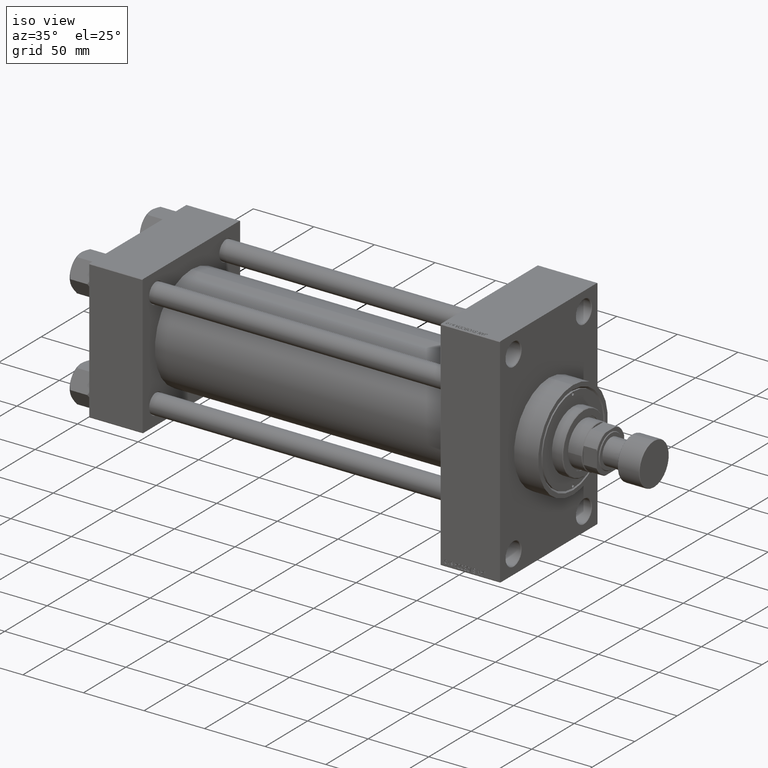
[diagram: clean part render]
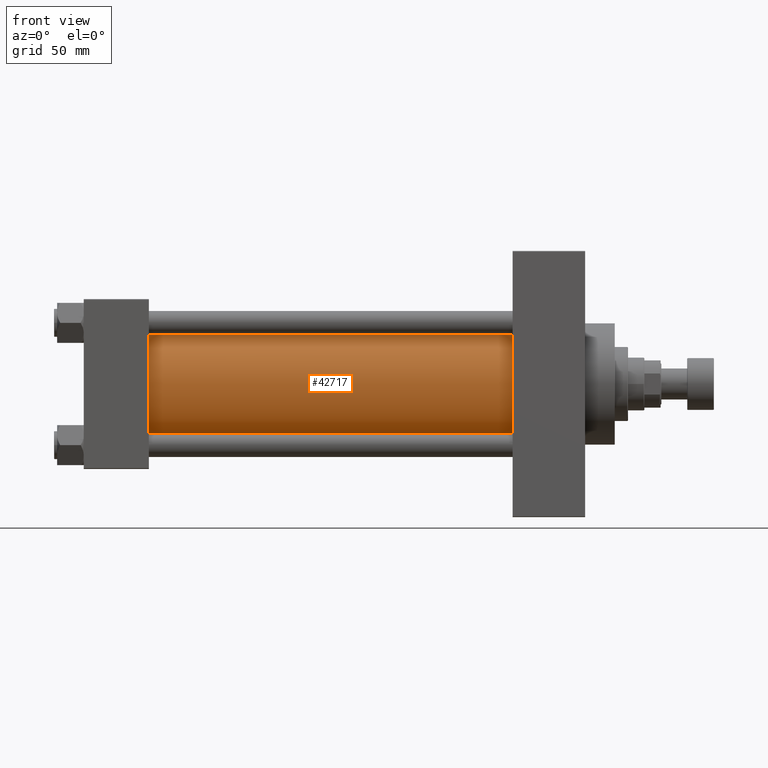
[diagram: tour spotlight — one face highlighted and labeled with its STEP entity id]
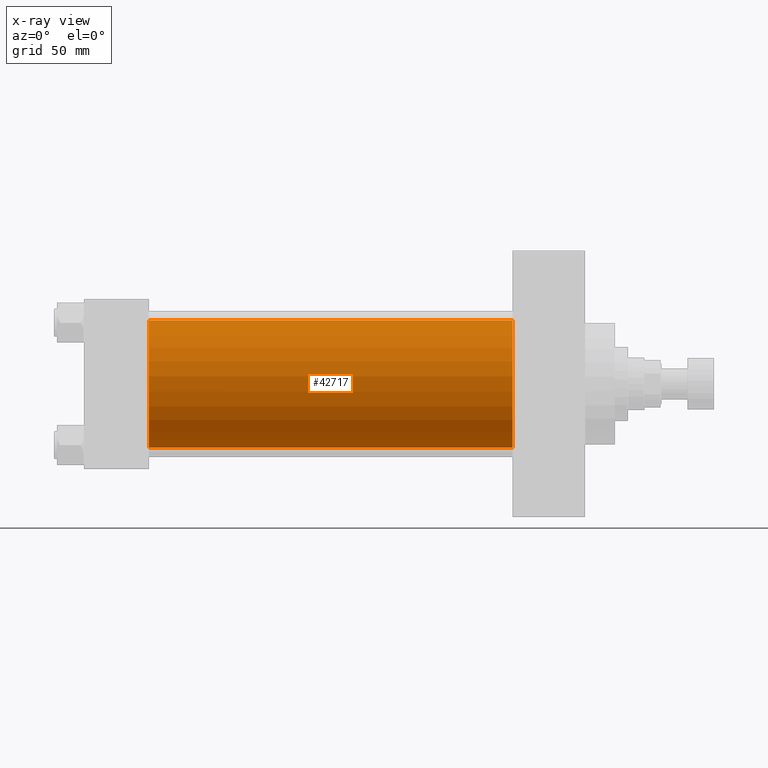
[diagram: x-ray of the same camera — body ghosted, this tour face saturated]
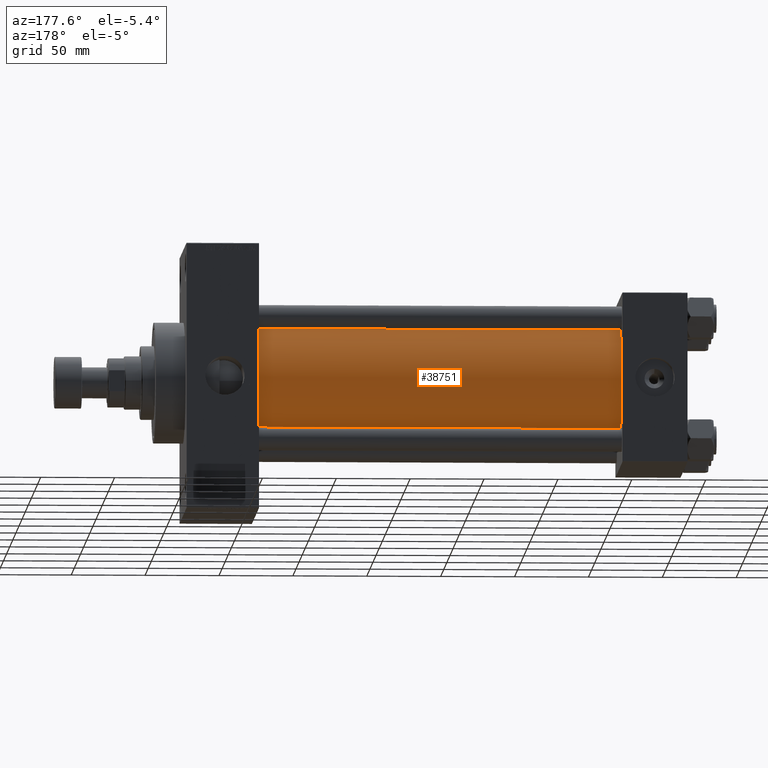
[diagram: tour spotlight — one face highlighted and labeled with its STEP entity id]
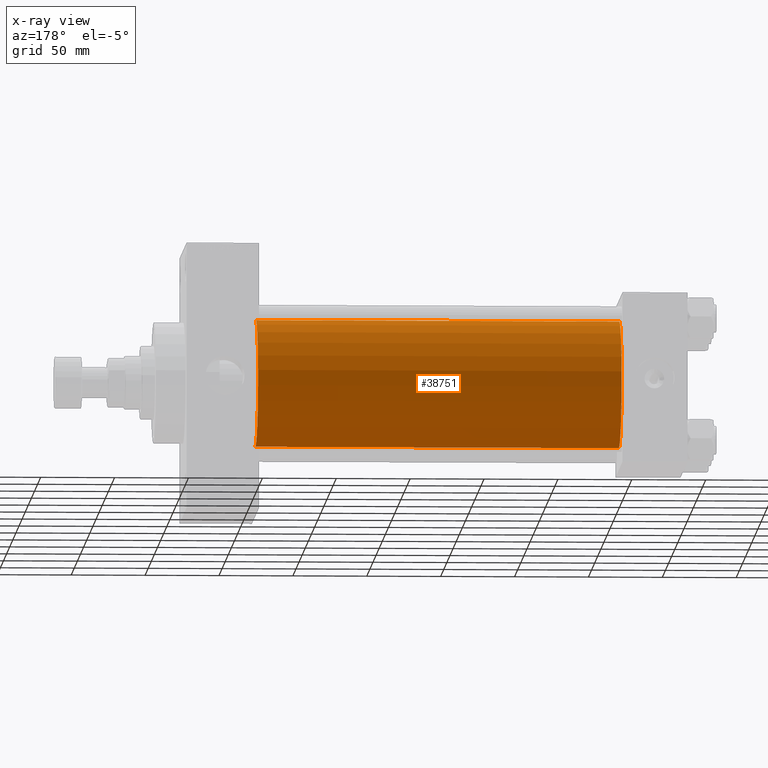
[diagram: x-ray of the same camera — body ghosted, this tour face saturated]
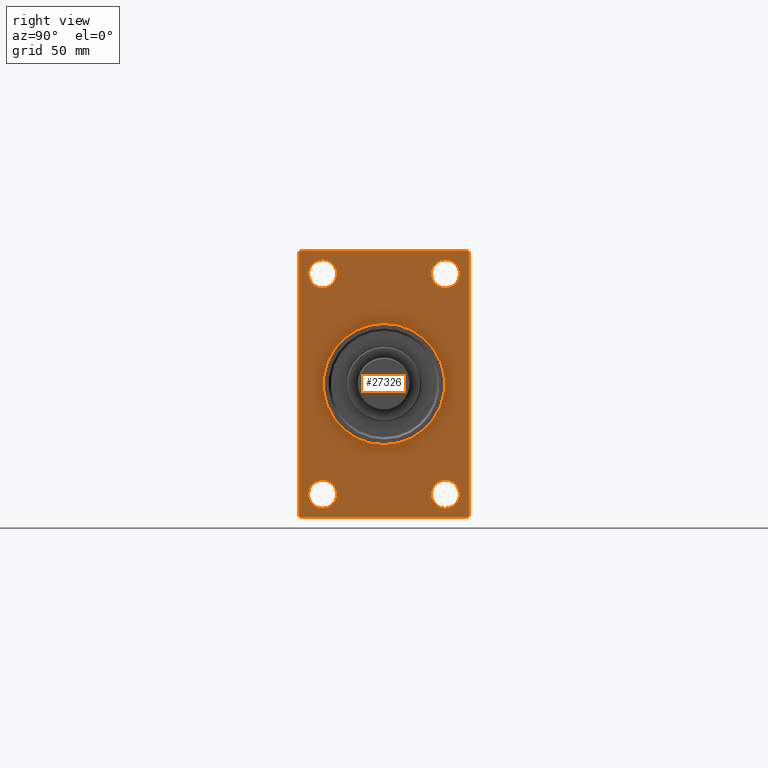
[diagram: tour spotlight — one face highlighted and labeled with its STEP entity id]
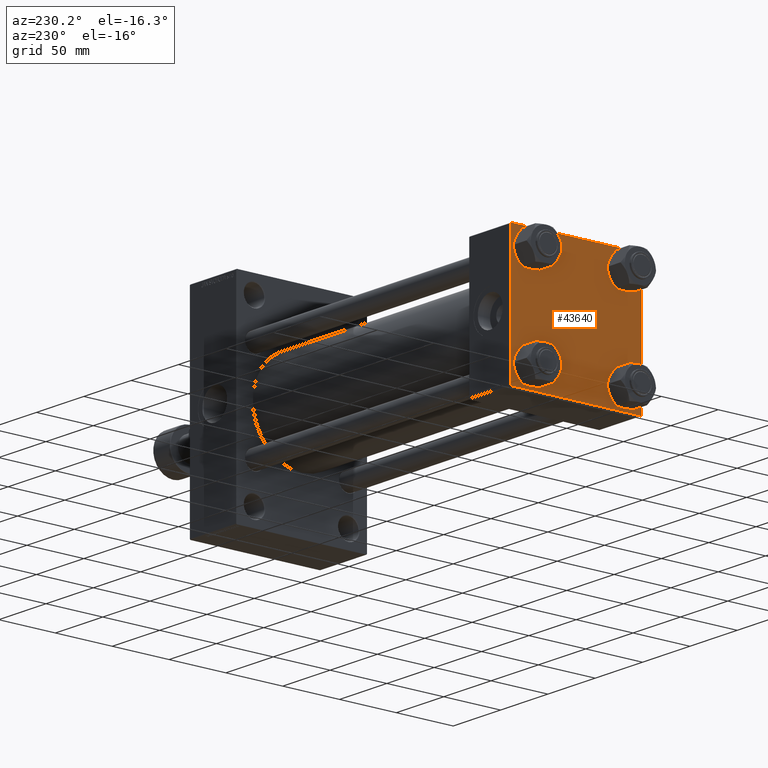
[diagram: tour spotlight — one face highlighted and labeled with its STEP entity id]
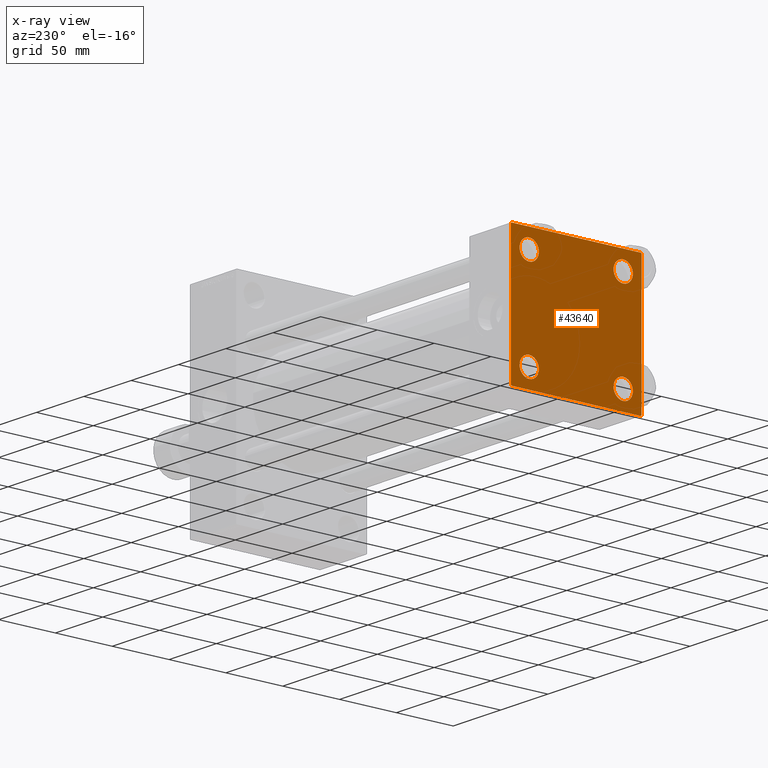
[diagram: x-ray of the same camera — body ghosted, this tour face saturated]
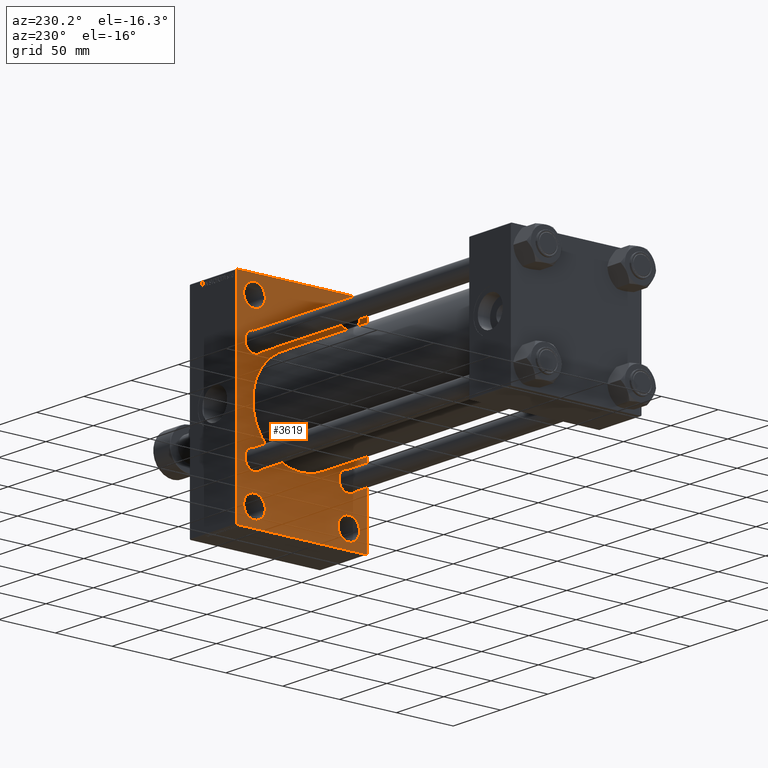
[diagram: tour spotlight — one face highlighted and labeled with its STEP entity id]
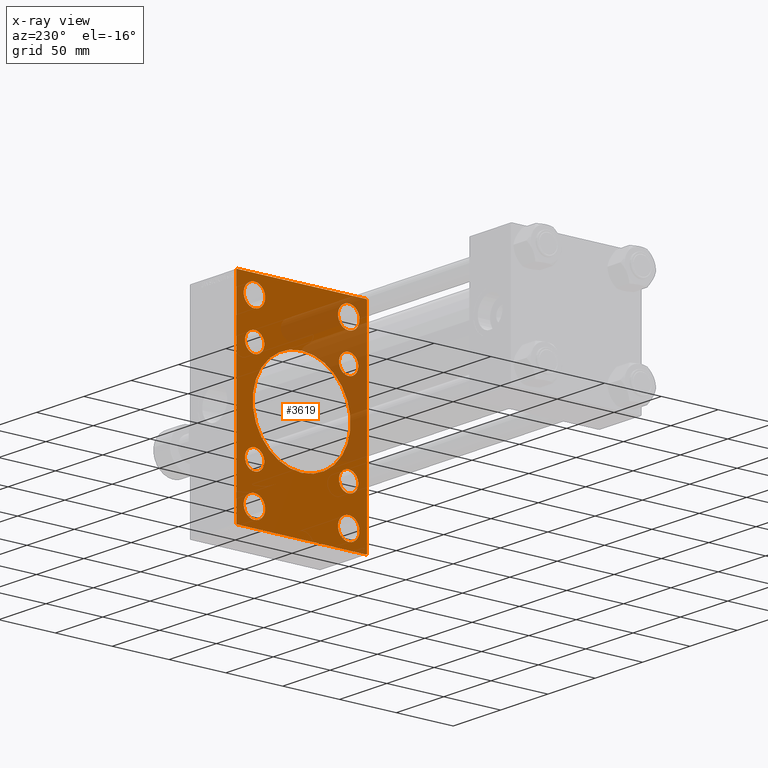
[diagram: x-ray of the same camera — body ghosted, this tour face saturated]
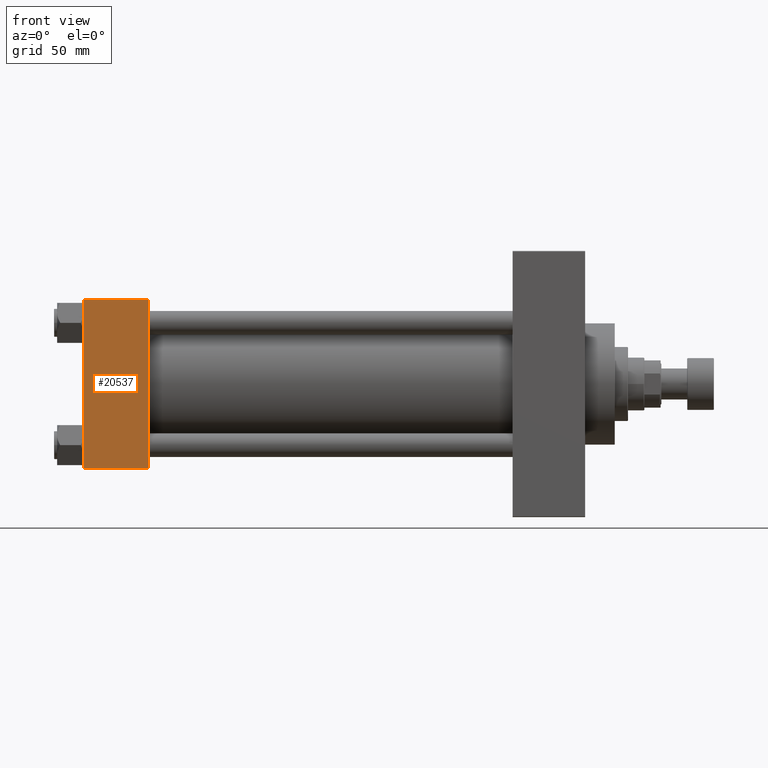
[diagram: tour spotlight — one face highlighted and labeled with its STEP entity id]
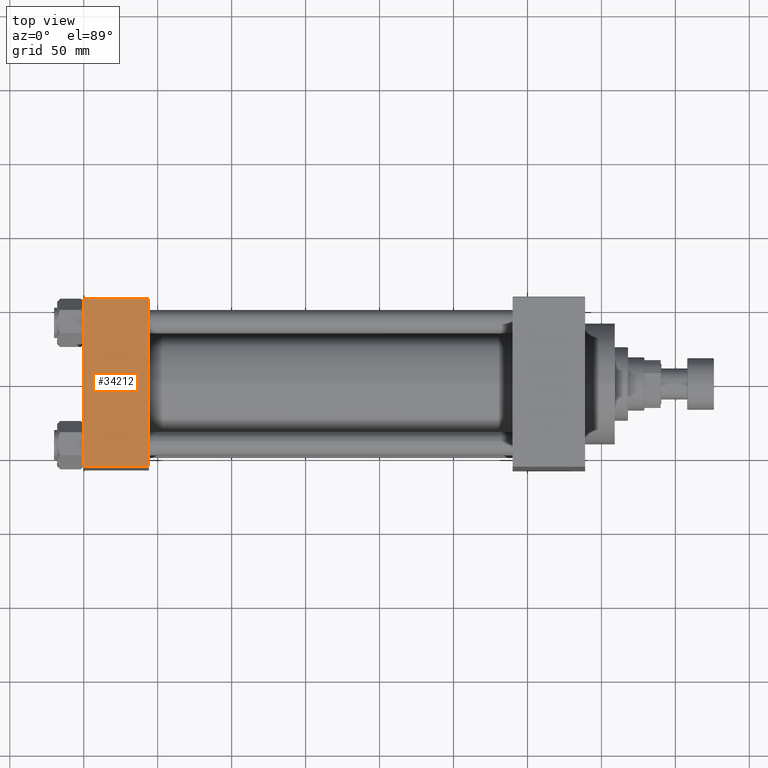
[diagram: tour spotlight — one face highlighted and labeled with its STEP entity id]
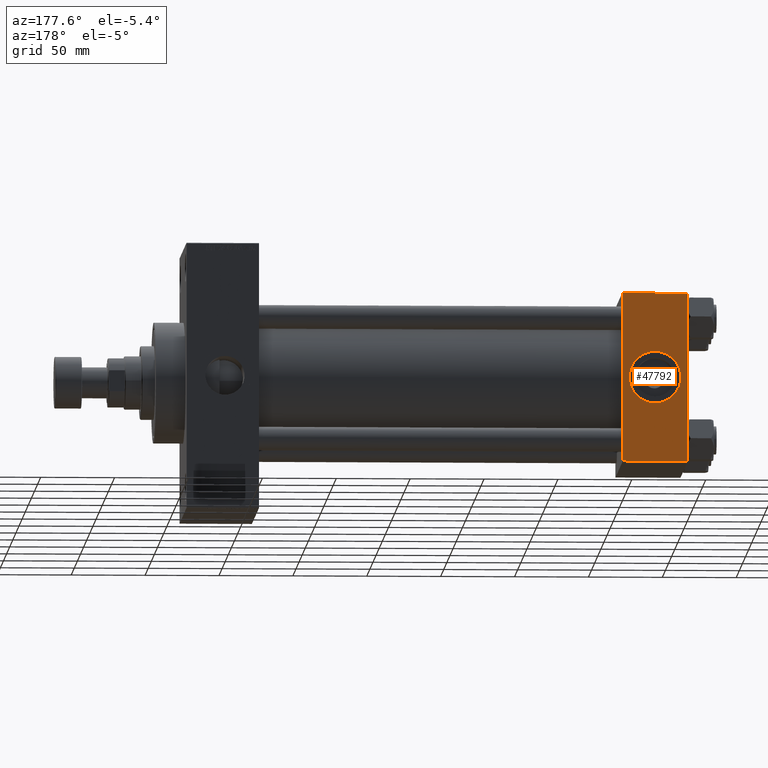
[diagram: tour spotlight — one face highlighted and labeled with its STEP entity id]
A machine part: a face-by-face anatomy tour. The part has 1174 B-rep faces; the first image is the clean iso view, then the 8 largest visible faces are spotlighted one at a time (largest first), each with its STEP entity span.

Face 1 — front view, entity #42717. An x-ray twin of the same camera follows (body ghosted, this face saturated) — the face is partly hidden behind the body. In plain terms, the highlighted cylindrical surface (partial cylindrical patch) has radius 43 mm, axis along (-1, -0, -0).
Definition (entity closure, byte-faithful):
#950 = LINE ( 'NONE', #41522, #4316 ) ;
#2492 = DIRECTION ( 'NONE',  ( -1.000000000000000000, -0.000000000000000000, -0.000000000000000000 ) ) ;
#3257 = DIRECTION ( 'NONE',  ( 0.000000000000000000, 0.000000000000000000, 1.000000000000000000 ) ) ;
#3794 = CYLINDRICAL_SURFACE ( 'NONE', #38267, 43.00000000000000000 ) ;
#4316 = VECTOR ( 'NONE', #15132, 1000.000000000000000 ) ;
#6854 = ORIENTED_EDGE ( 'NONE', *, *, #48324, .F. ) ;
#7986 = CIRCLE ( 'NONE', #26754, 43.00000000000000000 ) ;
#8525 = CARTESIAN_POINT ( 'NONE',  ( 290.0000000000000000, -2.602085213965210642E-15, 0.000000000000000000 ) ) ;
#13323 = VERTEX_POINT ( 'NONE', #23169 ) ;
#14971 = ORIENTED_EDGE ( 'NONE', *, *, #22107, .T. ) ;
#15037 = AXIS2_PLACEMENT_3D ( 'NONE', #39952, #25282, #3257 ) ;
#15058 = DIRECTION ( 'NONE',  ( 0.000000000000000000, 0.000000000000000000, 1.000000000000000000 ) ) ;
#15132 = DIRECTION ( 'NONE',  ( -1.000000000000000000, -0.000000000000000000, -0.000000000000000000 ) ) ;
#15250 = VERTEX_POINT ( 'NONE', #43963 ) ;
#15531 = CARTESIAN_POINT ( 'NONE',  ( 290.0000000000000000, -2.602085213965210642E-15, 0.000000000000000000 ) ) ;
#16609 = CARTESIAN_POINT ( 'NONE',  ( 290.0000000000000000, 2.663896022368408223E-15, -43.00000000000000000 ) ) ;
#17251 = CARTESIAN_POINT ( 'NONE',  ( 290.0000000000000000, -2.602085213965210642E-15, 43.00000000000000000 ) ) ;
#19188 = VERTEX_POINT ( 'NONE', #17251 ) ;
#19201 = DIRECTION ( 'NONE',  ( -1.000000000000000000, -0.000000000000000000, -0.000000000000000000 ) ) ;
#20352 = ORIENTED_EDGE ( 'NONE', *, *, #26258, .F. ) ;
#20977 = DIRECTION ( 'NONE',  ( 0.000000000000000000, 0.000000000000000000, -1.000000000000000000 ) ) ;
#22107 = EDGE_CURVE ( 'NONE', #15250, #13323, #36925, .T. ) ;
#23169 = CARTESIAN_POINT ( 'NONE',  ( 43.99999999999998579, 2.663896022368408223E-15, -43.00000000000000000 ) ) ;
#23437 = DIRECTION ( 'NONE',  ( 1.000000000000000000, 0.000000000000000000, 0.000000000000000000 ) ) ;
#25282 = DIRECTION ( 'NONE',  ( 1.000000000000000000, -0.000000000000000000, 0.000000000000000000 ) ) ;
#26258 = EDGE_CURVE ( 'NONE', #27819, #13323, #32348, .T. ) ;
#26754 = AXIS2_PLACEMENT_3D ( 'NONE', #8525, #23437, #20977 ) ;
#27751 = EDGE_CURVE ( 'NONE', #19188, #15250, #950, .T. ) ;
#27819 = VERTEX_POINT ( 'NONE', #16609 ) ;
#30322 = ORIENTED_EDGE ( 'NONE', *, *, #27751, .T. ) ;
#32348 = LINE ( 'NONE', #39899, #38653 ) ;
#34563 = EDGE_LOOP ( 'NONE', ( #20352, #6854, #30322, #14971 ) ) ;
#36925 = CIRCLE ( 'NONE', #15037, 43.00000000000000000 ) ;
#38267 = AXIS2_PLACEMENT_3D ( 'NONE', #15531, #19201, #15058 ) ;
#38653 = VECTOR ( 'NONE', #2492, 1000.000000000000000 ) ;
#39899 = CARTESIAN_POINT ( 'NONE',  ( 290.0000000000000000, 2.663896022368408223E-15, -43.00000000000000000 ) ) ;
#39952 = CARTESIAN_POINT ( 'NONE',  ( 43.99999999999998579, -2.602085213965210642E-15, 0.000000000000000000 ) ) ;
#41522 = CARTESIAN_POINT ( 'NONE',  ( 290.0000000000000000, -2.602085213965210642E-15, 43.00000000000000000 ) ) ;
#42717 = ADVANCED_FACE ( 'NONE', ( #45617 ), #3794, .T. ) ;
#43963 = CARTESIAN_POINT ( 'NONE',  ( 43.99999999999998579, -2.602085213965210642E-15, 43.00000000000000000 ) ) ;
#45617 = FACE_OUTER_BOUND ( 'NONE', #34563, .T. ) ;
#48324 = EDGE_CURVE ( 'NONE', #19188, #27819, #7986, .T. ) ;

Face 2 — auxiliary view, entity #38751. An x-ray twin of the same camera follows (body ghosted, this face saturated) — the face is partly hidden behind the body. In plain terms, the highlighted cylindrical surface (partial cylindrical patch) has radius 43 mm, axis along (-1, -0, -0).
Definition (entity closure, byte-faithful):
#950 = LINE ( 'NONE', #41522, #4316 ) ;
#1489 = AXIS2_PLACEMENT_3D ( 'NONE', #10426, #29261, #35872 ) ;
#2492 = DIRECTION ( 'NONE',  ( -1.000000000000000000, -0.000000000000000000, -0.000000000000000000 ) ) ;
#4316 = VECTOR ( 'NONE', #15132, 1000.000000000000000 ) ;
#5968 = AXIS2_PLACEMENT_3D ( 'NONE', #16378, #42285, #43006 ) ;
#8660 = CARTESIAN_POINT ( 'NONE',  ( 290.0000000000000000, -2.602085213965210642E-15, 0.000000000000000000 ) ) ;
#9382 = EDGE_CURVE ( 'NONE', #13323, #15250, #36618, .T. ) ;
#10426 = CARTESIAN_POINT ( 'NONE',  ( 43.99999999999998579, -2.602085213965210642E-15, 0.000000000000000000 ) ) ;
#11945 = ORIENTED_EDGE ( 'NONE', *, *, #29802, .F. ) ;
#12579 = FACE_OUTER_BOUND ( 'NONE', #36230, .T. ) ;
#13323 = VERTEX_POINT ( 'NONE', #23169 ) ;
#15132 = DIRECTION ( 'NONE',  ( -1.000000000000000000, -0.000000000000000000, -0.000000000000000000 ) ) ;
#15250 = VERTEX_POINT ( 'NONE', #43963 ) ;
#16378 = CARTESIAN_POINT ( 'NONE',  ( 290.0000000000000000, -2.602085213965210642E-15, 0.000000000000000000 ) ) ;
#16609 = CARTESIAN_POINT ( 'NONE',  ( 290.0000000000000000, 2.663896022368408223E-15, -43.00000000000000000 ) ) ;
#17251 = CARTESIAN_POINT ( 'NONE',  ( 290.0000000000000000, -2.602085213965210642E-15, 43.00000000000000000 ) ) ;
#19188 = VERTEX_POINT ( 'NONE', #17251 ) ;
#19606 = ORIENTED_EDGE ( 'NONE', *, *, #27751, .F. ) ;
#22354 = CIRCLE ( 'NONE', #5968, 43.00000000000000000 ) ;
#23169 = CARTESIAN_POINT ( 'NONE',  ( 43.99999999999998579, 2.663896022368408223E-15, -43.00000000000000000 ) ) ;
#25468 = ORIENTED_EDGE ( 'NONE', *, *, #9382, .T. ) ;
#26258 = EDGE_CURVE ( 'NONE', #27819, #13323, #32348, .T. ) ;
#27507 = DIRECTION ( 'NONE',  ( -1.000000000000000000, -0.000000000000000000, -0.000000000000000000 ) ) ;
#27751 = EDGE_CURVE ( 'NONE', #19188, #15250, #950, .T. ) ;
#27819 = VERTEX_POINT ( 'NONE', #16609 ) ;
#29261 = DIRECTION ( 'NONE',  ( 1.000000000000000000, -0.000000000000000000, 0.000000000000000000 ) ) ;
#29586 = AXIS2_PLACEMENT_3D ( 'NONE', #8660, #27507, #42404 ) ;
#29802 = EDGE_CURVE ( 'NONE', #27819, #19188, #22354, .T. ) ;
#32348 = LINE ( 'NONE', #39899, #38653 ) ;
#35872 = DIRECTION ( 'NONE',  ( 0.000000000000000000, 0.000000000000000000, 1.000000000000000000 ) ) ;
#36230 = EDGE_LOOP ( 'NONE', ( #11945, #41700, #25468, #19606 ) ) ;
#36618 = CIRCLE ( 'NONE', #1489, 43.00000000000000000 ) ;
#38653 = VECTOR ( 'NONE', #2492, 1000.000000000000000 ) ;
#38751 = ADVANCED_FACE ( 'NONE', ( #12579 ), #46077, .T. ) ;
#39899 = CARTESIAN_POINT ( 'NONE',  ( 290.0000000000000000, 2.663896022368408223E-15, -43.00000000000000000 ) ) ;
#41522 = CARTESIAN_POINT ( 'NONE',  ( 290.0000000000000000, -2.602085213965210642E-15, 43.00000000000000000 ) ) ;
#41700 = ORIENTED_EDGE ( 'NONE', *, *, #26258, .T. ) ;
#42285 = DIRECTION ( 'NONE',  ( 1.000000000000000000, 0.000000000000000000, 0.000000000000000000 ) ) ;
#42404 = DIRECTION ( 'NONE',  ( 0.000000000000000000, 0.000000000000000000, 1.000000000000000000 ) ) ;
#43006 = DIRECTION ( 'NONE',  ( 0.000000000000000000, 0.000000000000000000, -1.000000000000000000 ) ) ;
#43963 = CARTESIAN_POINT ( 'NONE',  ( 43.99999999999998579, -2.602085213965210642E-15, 43.00000000000000000 ) ) ;
#46077 = CYLINDRICAL_SURFACE ( 'NONE', #29586, 43.00000000000000000 ) ;

Face 3 — right view, entity #27326. In plain terms, the highlighted planar face has unit normal (-1, 0, 0).
Definition (entity closure, byte-faithful):
#500 = CIRCLE ( 'NONE', #11425, 9.500000000000063949 ) ;
#610 = LINE ( 'NONE', #1125, #29519 ) ;
#817 = CARTESIAN_POINT ( 'NONE',  ( 338.9999999999999432, -57.50000000000002132, 89.49999999999997158 ) ) ;
#844 = AXIS2_PLACEMENT_3D ( 'NONE', #24233, #20574, #35497 ) ;
#1125 = CARTESIAN_POINT ( 'NONE',  ( 338.9999999999999432, -57.00000000000002132, -90.00000000000001421 ) ) ;
#2019 = LINE ( 'NONE', #32572, #20378 ) ;
#2731 = CARTESIAN_POINT ( 'NONE',  ( 338.9999999999999432, 41.50000000000000711, -84.00000000000005684 ) ) ;
#3232 = VECTOR ( 'NONE', #32502, 1000.000000000000000 ) ;
#3244 = VECTOR ( 'NONE', #45613, 1000.000000000000000 ) ;
#3889 = CARTESIAN_POINT ( 'NONE',  ( 338.9999999999999432, 57.49999999999997158, 89.49999999999998579 ) ) ;
#4077 = DIRECTION ( 'NONE',  ( 0.000000000000000000, -1.000000000000000000, -1.206764157201257045E-16 ) ) ;
#4099 = ORIENTED_EDGE ( 'NONE', *, *, #35786, .T. ) ;
#4620 = EDGE_CURVE ( 'NONE', #7673, #13040, #6797, .T. ) ;
#4778 = EDGE_LOOP ( 'NONE', ( #42971, #43288 ) ) ;
#4950 = CARTESIAN_POINT ( 'NONE',  ( 338.9999999999999432, 57.00000000000003553, -90.00000000000000000 ) ) ;
#5122 = DIRECTION ( 'NONE',  ( 0.000000000000000000, 0.000000000000000000, 1.000000000000000000 ) ) ;
#5369 = CIRCLE ( 'NONE', #27213, 41.00000000000000000 ) ;
#5480 = LINE ( 'NONE', #16733, #6375 ) ;
#6375 = VECTOR ( 'NONE', #13057, 1000.000000000000000 ) ;
#6797 = LINE ( 'NONE', #21253, #3232 ) ;
#7204 = ORIENTED_EDGE ( 'NONE', *, *, #7427, .T. ) ;
#7427 = EDGE_CURVE ( 'NONE', #29681, #34371, #25092, .T. ) ;
#7673 = VERTEX_POINT ( 'NONE', #8941 ) ;
#7963 = EDGE_CURVE ( 'NONE', #12844, #20256, #5369, .T. ) ;
#8246 = CARTESIAN_POINT ( 'NONE',  ( 338.9999999999999432, 56.99999999999992184, 89.99999999999998579 ) ) ;
#8515 = CARTESIAN_POINT ( 'NONE',  ( 338.9999999999999432, -41.49999999999999289, -74.49999999999998579 ) ) ;
#8707 = ORIENTED_EDGE ( 'NONE', *, *, #30119, .T. ) ;
#8941 = CARTESIAN_POINT ( 'NONE',  ( 338.9999999999999432, -57.50000000000002132, 89.49999999999997158 ) ) ;
#9438 = DIRECTION ( 'NONE',  ( -0.000000000000000000, 0.000000000000000000, 1.000000000000000000 ) ) ;
#9512 = AXIS2_PLACEMENT_3D ( 'NONE', #20539, #16634, #34742 ) ;
#9720 = DIRECTION ( 'NONE',  ( 1.000000000000000000, 0.000000000000000000, 0.000000000000000000 ) ) ;
#9842 = VERTEX_POINT ( 'NONE', #2731 ) ;
#10007 = ORIENTED_EDGE ( 'NONE', *, *, #24605, .T. ) ;
#10103 = VECTOR ( 'NONE', #21193, 1000.000000000000000 ) ;
#10211 = CIRCLE ( 'NONE', #844, 9.500000000000063949 ) ;
#10572 = EDGE_LOOP ( 'NONE', ( #21588, #32579, #46177, #32167, #30769, #7204, #48108, #4099 ) ) ;
#10654 = CARTESIAN_POINT ( 'NONE',  ( 338.9999999999999432, 56.99999999999992184, 89.99999999999998579 ) ) ;
#10667 = VERTEX_POINT ( 'NONE', #33844 ) ;
#10923 = CARTESIAN_POINT ( 'NONE',  ( 338.9999999999999432, 57.49999999999997868, -89.49999999999995737 ) ) ;
#11226 = CARTESIAN_POINT ( 'NONE',  ( 338.9999999999999432, 41.50000000000000711, 74.50000000000001421 ) ) ;
#11425 = AXIS2_PLACEMENT_3D ( 'NONE', #21234, #13883, #32485 ) ;
#11811 = VERTEX_POINT ( 'NONE', #17349 ) ;
#11878 = AXIS2_PLACEMENT_3D ( 'NONE', #8515, #23427, #38345 ) ;
#12844 = VERTEX_POINT ( 'NONE', #25515 ) ;
#13040 = VERTEX_POINT ( 'NONE', #35306 ) ;
#13057 = DIRECTION ( 'NONE',  ( 0.000000000000000000, -1.000000000000000000, -1.206764157201257291E-16 ) ) ;
#13136 = EDGE_CURVE ( 'NONE', #42410, #38316, #2019, .T. ) ;
#13448 = CARTESIAN_POINT ( 'NONE',  ( 338.9999999999999432, 0.000000000000000000, 0.000000000000000000 ) ) ;
#13561 = VERTEX_POINT ( 'NONE', #42687 ) ;
#13741 = DIRECTION ( 'NONE',  ( -0.000000000000000000, 0.7071067811865181518, 0.7071067811865769936 ) ) ;
#13883 = DIRECTION ( 'NONE',  ( -1.000000000000000000, 0.000000000000000000, -0.000000000000000000 ) ) ;
#13942 = VECTOR ( 'NONE', #38725, 1000.000000000000000 ) ;
#13961 = CARTESIAN_POINT ( 'NONE',  ( 338.9999999999999432, -41.49999999999999289, 64.99999999999994316 ) ) ;
#14054 = FACE_BOUND ( 'NONE', #28457, .T. ) ;
#14119 = CARTESIAN_POINT ( 'NONE',  ( 338.9999999999999432, 41.50000000000000711, -74.50000000000000000 ) ) ;
#15957 = EDGE_CURVE ( 'NONE', #19271, #29200, #46204, .T. ) ;
#16037 = LINE ( 'NONE', #35362, #3244 ) ;
#16283 = DIRECTION ( 'NONE',  ( 0.000000000000000000, 0.7071067811865965336, -0.7071067811864985009 ) ) ;
#16634 = DIRECTION ( 'NONE',  ( -1.000000000000000000, 0.000000000000000000, -0.000000000000000000 ) ) ;
#16733 = CARTESIAN_POINT ( 'NONE',  ( 338.9999999999999432, 57.49999999999997158, 89.99999999999998579 ) ) ;
#16854 = VERTEX_POINT ( 'NONE', #19134 ) ;
#17349 = CARTESIAN_POINT ( 'NONE',  ( 338.9999999999999432, 41.50000000000000711, 84.00000000000007105 ) ) ;
#17704 = EDGE_LOOP ( 'NONE', ( #19007, #43660 ) ) ;
#18048 = DIRECTION ( 'NONE',  ( -1.000000000000000000, 0.000000000000000000, -0.000000000000000000 ) ) ;
#18553 = VECTOR ( 'NONE', #4077, 1000.000000000000000 ) ;
#18598 = VERTEX_POINT ( 'NONE', #44468 ) ;
#19007 = ORIENTED_EDGE ( 'NONE', *, *, #15957, .T. ) ;
#19134 = CARTESIAN_POINT ( 'NONE',  ( 338.9999999999999432, -57.00000000000007105, 89.99999999999997158 ) ) ;
#19271 = VERTEX_POINT ( 'NONE', #36313 ) ;
#20256 = VERTEX_POINT ( 'NONE', #45535 ) ;
#20378 = VECTOR ( 'NONE', #13741, 1000.000000000000000 ) ;
#20408 = CARTESIAN_POINT ( 'NONE',  ( 338.9999999999999432, -41.49999999999999289, -65.00000000000008527 ) ) ;
#20498 = DIRECTION ( 'NONE',  ( 0.000000000000000000, 0.000000000000000000, -1.000000000000000000 ) ) ;
#20539 = CARTESIAN_POINT ( 'NONE',  ( 338.9999999999999432, -41.49999999999999289, -74.49999999999998579 ) ) ;
#20574 = DIRECTION ( 'NONE',  ( -1.000000000000000000, 0.000000000000000000, -0.000000000000000000 ) ) ;
#20914 = FACE_BOUND ( 'NONE', #4778, .T. ) ;
#21193 = DIRECTION ( 'NONE',  ( 0.000000000000000000, -0.7071067811865867636, 0.7071067811865081598 ) ) ;
#21234 = CARTESIAN_POINT ( 'NONE',  ( 338.9999999999999432, 41.50000000000000711, -74.50000000000000000 ) ) ;
#21253 = CARTESIAN_POINT ( 'NONE',  ( 338.9999999999999432, -57.50000000000002132, 89.99999999999997158 ) ) ;
#21372 = ORIENTED_EDGE ( 'NONE', *, *, #36316, .T. ) ;
#21588 = ORIENTED_EDGE ( 'NONE', *, *, #4620, .T. ) ;
#23195 = DIRECTION ( 'NONE',  ( -1.000000000000000000, 0.000000000000000000, -0.000000000000000000 ) ) ;
#23427 = DIRECTION ( 'NONE',  ( -1.000000000000000000, 0.000000000000000000, -0.000000000000000000 ) ) ;
#24233 = CARTESIAN_POINT ( 'NONE',  ( 338.9999999999999432, -41.49999999999999289, 74.50000000000001421 ) ) ;
#24605 = EDGE_CURVE ( 'NONE', #11811, #18598, #41704, .T. ) ;
#25092 = LINE ( 'NONE', #10654, #10103 ) ;
#25362 = DIRECTION ( 'NONE',  ( -1.000000000000000000, 0.000000000000000000, -0.000000000000000000 ) ) ;
#25515 = CARTESIAN_POINT ( 'NONE',  ( 338.9999999999999432, 5.021051876504148963E-15, -41.00000000000000000 ) ) ;
#25857 = LINE ( 'NONE', #37579, #18553 ) ;
#26045 = EDGE_CURVE ( 'NONE', #20256, #12844, #28502, .T. ) ;
#26267 = CIRCLE ( 'NONE', #40294, 9.500000000000063949 ) ;
#27213 = AXIS2_PLACEMENT_3D ( 'NONE', #13448, #31578, #28376 ) ;
#27326 = ADVANCED_FACE ( 'NONE', ( #36314, #28272, #14054, #46605, #20914, #43171 ), #40206, .F. ) ;
#28029 = CARTESIAN_POINT ( 'NONE',  ( 338.9999999999999432, 0.000000000000000000, 0.000000000000000000 ) ) ;
#28272 = FACE_BOUND ( 'NONE', #17704, .T. ) ;
#28376 = DIRECTION ( 'NONE',  ( 0.000000000000000000, 0.000000000000000000, -1.000000000000000000 ) ) ;
#28457 = EDGE_LOOP ( 'NONE', ( #21372, #30133 ) ) ;
#28502 = CIRCLE ( 'NONE', #47986, 41.00000000000000000 ) ;
#28620 = CARTESIAN_POINT ( 'NONE',  ( 338.9999999999999432, -41.49999999999999289, 84.00000000000007105 ) ) ;
#28908 = EDGE_LOOP ( 'NONE', ( #36953, #10007 ) ) ;
#29041 = DIRECTION ( 'NONE',  ( 0.000000000000000000, 0.000000000000000000, 1.000000000000000000 ) ) ;
#29107 = DIRECTION ( 'NONE',  ( 0.000000000000000000, 0.000000000000000000, 1.000000000000000000 ) ) ;
#29200 = VERTEX_POINT ( 'NONE', #20408 ) ;
#29231 = AXIS2_PLACEMENT_3D ( 'NONE', #11226, #44240, #29107 ) ;
#29519 = VECTOR ( 'NONE', #16283, 1000.000000000000114 ) ;
#29681 = VERTEX_POINT ( 'NONE', #3889 ) ;
#29919 = EDGE_CURVE ( 'NONE', #10667, #9842, #500, .T. ) ;
#30119 = EDGE_CURVE ( 'NONE', #48094, #41408, #26267, .T. ) ;
#30133 = ORIENTED_EDGE ( 'NONE', *, *, #29919, .T. ) ;
#30769 = ORIENTED_EDGE ( 'NONE', *, *, #46481, .F. ) ;
#31578 = DIRECTION ( 'NONE',  ( 1.000000000000000000, 0.000000000000000000, 0.000000000000000000 ) ) ;
#32167 = ORIENTED_EDGE ( 'NONE', *, *, #13136, .T. ) ;
#32485 = DIRECTION ( 'NONE',  ( 0.000000000000000000, 0.000000000000000000, 1.000000000000000000 ) ) ;
#32502 = DIRECTION ( 'NONE',  ( 0.000000000000000000, 0.000000000000000000, -1.000000000000000000 ) ) ;
#32511 = EDGE_CURVE ( 'NONE', #18598, #11811, #47419, .T. ) ;
#32572 = CARTESIAN_POINT ( 'NONE',  ( 338.9999999999999432, 57.49999999999997868, -89.50000000000001421 ) ) ;
#32579 = ORIENTED_EDGE ( 'NONE', *, *, #34668, .T. ) ;
#33569 = EDGE_CURVE ( 'NONE', #42410, #13561, #25857, .T. ) ;
#33844 = CARTESIAN_POINT ( 'NONE',  ( 338.9999999999999432, 41.50000000000000711, -64.99999999999992895 ) ) ;
#34371 = VERTEX_POINT ( 'NONE', #8246 ) ;
#34668 = EDGE_CURVE ( 'NONE', #13040, #13561, #610, .T. ) ;
#34742 = DIRECTION ( 'NONE',  ( 0.000000000000000000, 0.000000000000000000, 1.000000000000000000 ) ) ;
#35071 = LINE ( 'NONE', #817, #13942 ) ;
#35306 = CARTESIAN_POINT ( 'NONE',  ( 338.9999999999999432, -57.50000000000002132, -89.50000000000002842 ) ) ;
#35362 = CARTESIAN_POINT ( 'NONE',  ( 338.9999999999999432, 57.49999999999997158, 89.99999999999998579 ) ) ;
#35497 = DIRECTION ( 'NONE',  ( 0.000000000000000000, 0.000000000000000000, 1.000000000000000000 ) ) ;
#35786 = EDGE_CURVE ( 'NONE', #16854, #7673, #35071, .T. ) ;
#36313 = CARTESIAN_POINT ( 'NONE',  ( 338.9999999999999432, -41.49999999999999289, -83.99999999999988631 ) ) ;
#36314 = FACE_BOUND ( 'NONE', #43007, .T. ) ;
#36316 = EDGE_CURVE ( 'NONE', #9842, #10667, #46009, .T. ) ;
#36617 = CARTESIAN_POINT ( 'NONE',  ( 338.9999999999999432, -41.49999999999999289, 74.50000000000001421 ) ) ;
#36953 = ORIENTED_EDGE ( 'NONE', *, *, #32511, .T. ) ;
#37254 = AXIS2_PLACEMENT_3D ( 'NONE', #38859, #23195, #5122 ) ;
#37579 = CARTESIAN_POINT ( 'NONE',  ( 338.9999999999999432, 57.49999999999997868, -90.00000000000000000 ) ) ;
#38316 = VERTEX_POINT ( 'NONE', #10923 ) ;
#38345 = DIRECTION ( 'NONE',  ( 0.000000000000000000, 0.000000000000000000, 1.000000000000000000 ) ) ;
#38465 = ORIENTED_EDGE ( 'NONE', *, *, #44297, .T. ) ;
#38725 = DIRECTION ( 'NONE',  ( -0.000000000000000000, -0.7071067811865131558, -0.7071067811865818786 ) ) ;
#38859 = CARTESIAN_POINT ( 'NONE',  ( 338.9999999999999432, 41.50000000000000711, 74.50000000000001421 ) ) ;
#40206 = PLANE ( 'NONE',  #44908 ) ;
#40294 = AXIS2_PLACEMENT_3D ( 'NONE', #36617, #18048, #40513 ) ;
#40513 = DIRECTION ( 'NONE',  ( 0.000000000000000000, 0.000000000000000000, 1.000000000000000000 ) ) ;
#41408 = VERTEX_POINT ( 'NONE', #13961 ) ;
#41704 = CIRCLE ( 'NONE', #29231, 9.500000000000063949 ) ;
#42410 = VERTEX_POINT ( 'NONE', #4950 ) ;
#42687 = CARTESIAN_POINT ( 'NONE',  ( 338.9999999999999432, -57.00000000000002132, -90.00000000000001421 ) ) ;
#42971 = ORIENTED_EDGE ( 'NONE', *, *, #26045, .F. ) ;
#43007 = EDGE_LOOP ( 'NONE', ( #38465, #8707 ) ) ;
#43171 = FACE_OUTER_BOUND ( 'NONE', #10572, .T. ) ;
#43218 = CARTESIAN_POINT ( 'NONE',  ( 338.9999999999999432, 0.000000000000000000, 0.000000000000000000 ) ) ;
#43288 = ORIENTED_EDGE ( 'NONE', *, *, #7963, .F. ) ;
#43638 = DIRECTION ( 'NONE',  ( -1.000000000000000000, 0.000000000000000000, -0.000000000000000000 ) ) ;
#43660 = ORIENTED_EDGE ( 'NONE', *, *, #47413, .T. ) ;
#44240 = DIRECTION ( 'NONE',  ( -1.000000000000000000, 0.000000000000000000, -0.000000000000000000 ) ) ;
#44297 = EDGE_CURVE ( 'NONE', #41408, #48094, #10211, .T. ) ;
#44410 = AXIS2_PLACEMENT_3D ( 'NONE', #14119, #25362, #29041 ) ;
#44468 = CARTESIAN_POINT ( 'NONE',  ( 338.9999999999999432, 41.50000000000000711, 64.99999999999994316 ) ) ;
#44908 = AXIS2_PLACEMENT_3D ( 'NONE', #28029, #43638, #9438 ) ;
#45030 = EDGE_CURVE ( 'NONE', #34371, #16854, #5480, .T. ) ;
#45535 = CARTESIAN_POINT ( 'NONE',  ( 338.9999999999999432, 0.000000000000000000, 41.00000000000000000 ) ) ;
#45613 = DIRECTION ( 'NONE',  ( 0.000000000000000000, 3.854941057726238467E-17, -1.000000000000000000 ) ) ;
#46009 = CIRCLE ( 'NONE', #44410, 9.500000000000063949 ) ;
#46177 = ORIENTED_EDGE ( 'NONE', *, *, #33569, .F. ) ;
#46204 = CIRCLE ( 'NONE', #9512, 9.499999999999896971 ) ;
#46481 = EDGE_CURVE ( 'NONE', #29681, #38316, #16037, .T. ) ;
#46605 = FACE_BOUND ( 'NONE', #28908, .T. ) ;
#47035 = CIRCLE ( 'NONE', #11878, 9.499999999999896971 ) ;
#47413 = EDGE_CURVE ( 'NONE', #29200, #19271, #47035, .T. ) ;
#47419 = CIRCLE ( 'NONE', #37254, 9.500000000000063949 ) ;
#47986 = AXIS2_PLACEMENT_3D ( 'NONE', #43218, #9720, #20498 ) ;
#48094 = VERTEX_POINT ( 'NONE', #28620 ) ;
#48108 = ORIENTED_EDGE ( 'NONE', *, *, #45030, .T. ) ;

Face 4 — auxiliary view, entity #43640. An x-ray twin of the same camera follows (body ghosted, this face saturated) — the face is partly hidden behind the body. In plain terms, the highlighted planar face has unit normal (-1, 0, 0).
Definition (entity closure, byte-faithful):
#303 = LINE ( 'NONE', #536, #7905 ) ;
#536 = CARTESIAN_POINT ( 'NONE',  ( 0.000000000000000000, 57.49999999999999289, 57.50000000000000711 ) ) ;
#546 = CARTESIAN_POINT ( 'NONE',  ( 0.000000000000000000, -41.34999999999998721, 49.85000000000000853 ) ) ;
#621 = DIRECTION ( 'NONE',  ( -1.000000000000000000, 0.000000000000000000, -0.000000000000000000 ) ) ;
#846 = VERTEX_POINT ( 'NONE', #35194 ) ;
#912 = LINE ( 'NONE', #48345, #30595 ) ;
#1008 = DIRECTION ( 'NONE',  ( 0.000000000000000000, 0.7071067811865573427, -0.7071067811865376918 ) ) ;
#1131 = CARTESIAN_POINT ( 'NONE',  ( 0.000000000000000000, 41.34999999999999432, 32.85000000000000853 ) ) ;
#1340 = DIRECTION ( 'NONE',  ( 0.000000000000000000, 0.000000000000000000, 1.000000000000000000 ) ) ;
#1559 = DIRECTION ( 'NONE',  ( 0.000000000000000000, 0.000000000000000000, 1.000000000000000000 ) ) ;
#1637 = VECTOR ( 'NONE', #36533, 1000.000000000000114 ) ;
#2353 = ORIENTED_EDGE ( 'NONE', *, *, #14190, .T. ) ;
#2588 = VERTEX_POINT ( 'NONE', #42754 ) ;
#2937 = ORIENTED_EDGE ( 'NONE', *, *, #40104, .T. ) ;
#3365 = VECTOR ( 'NONE', #6100, 1000.000000000000000 ) ;
#4078 = AXIS2_PLACEMENT_3D ( 'NONE', #42628, #19902, #1559 ) ;
#4158 = EDGE_CURVE ( 'NONE', #26982, #33793, #303, .T. ) ;
#5349 = CARTESIAN_POINT ( 'NONE',  ( 0.000000000000000000, 57.49999999999999289, 57.00000000000003553 ) ) ;
#5360 = EDGE_LOOP ( 'NONE', ( #45726, #2353 ) ) ;
#5489 = CARTESIAN_POINT ( 'NONE',  ( 0.000000000000000000, 41.34999999999999432, -32.85000000000000853 ) ) ;
#5704 = VERTEX_POINT ( 'NONE', #1131 ) ;
#6100 = DIRECTION ( 'NONE',  ( 0.000000000000000000, -1.000000000000000000, -1.206764157201257045E-16 ) ) ;
#6735 = VERTEX_POINT ( 'NONE', #30145 ) ;
#7457 = VERTEX_POINT ( 'NONE', #21659 ) ;
#7905 = VECTOR ( 'NONE', #26714, 1000.000000000000000 ) ;
#8041 = VERTEX_POINT ( 'NONE', #25163 ) ;
#8359 = EDGE_CURVE ( 'NONE', #26475, #31679, #24967, .T. ) ;
#8459 = FACE_BOUND ( 'NONE', #37853, .T. ) ;
#9109 = ORIENTED_EDGE ( 'NONE', *, *, #48000, .T. ) ;
#9511 = DIRECTION ( 'NONE',  ( 1.000000000000000000, -0.000000000000000000, 0.000000000000000000 ) ) ;
#10407 = CARTESIAN_POINT ( 'NONE',  ( 0.000000000000000000, 41.34999999999999432, -41.35000000000000142 ) ) ;
#10411 = VERTEX_POINT ( 'NONE', #45870 ) ;
#11294 = ORIENTED_EDGE ( 'NONE', *, *, #4158, .T. ) ;
#11634 = LINE ( 'NONE', #23370, #20355 ) ;
#11881 = CARTESIAN_POINT ( 'NONE',  ( 0.000000000000000000, 0.000000000000000000, 0.000000000000000000 ) ) ;
#12003 = CARTESIAN_POINT ( 'NONE',  ( 0.000000000000000000, -41.34999999999998721, -32.85000000000001563 ) ) ;
#12773 = CARTESIAN_POINT ( 'NONE',  ( 0.000000000000000000, 57.49999999999999289, 57.50000000000000711 ) ) ;
#13148 = DIRECTION ( 'NONE',  ( 0.000000000000000000, 0.000000000000000000, 1.000000000000000000 ) ) ;
#13678 = EDGE_CURVE ( 'NONE', #33793, #8041, #39712, .T. ) ;
#14190 = EDGE_CURVE ( 'NONE', #5704, #6735, #45378, .T. ) ;
#15099 = DIRECTION ( 'NONE',  ( 0.000000000000000000, -0.7071067811865474617, 0.7071067811865474617 ) ) ;
#15136 = VERTEX_POINT ( 'NONE', #37638 ) ;
#15302 = PLANE ( 'NONE',  #22645 ) ;
#15803 = FACE_BOUND ( 'NONE', #46647, .T. ) ;
#16169 = EDGE_CURVE ( 'NONE', #2588, #846, #912, .T. ) ;
#17684 = DIRECTION ( 'NONE',  ( 1.000000000000000000, -0.000000000000000000, 0.000000000000000000 ) ) ;
#17749 = AXIS2_PLACEMENT_3D ( 'NONE', #35911, #9511, #24426 ) ;
#17821 = AXIS2_PLACEMENT_3D ( 'NONE', #23368, #27053, #35135 ) ;
#17986 = VERTEX_POINT ( 'NONE', #546 ) ;
#18055 = VERTEX_POINT ( 'NONE', #22091 ) ;
#18607 = AXIS2_PLACEMENT_3D ( 'NONE', #20006, #39533, #13148 ) ;
#19211 = FACE_BOUND ( 'NONE', #5360, .T. ) ;
#19424 = DIRECTION ( 'NONE',  ( 1.000000000000000000, -0.000000000000000000, 0.000000000000000000 ) ) ;
#19586 = LINE ( 'NONE', #35009, #29901 ) ;
#19902 = DIRECTION ( 'NONE',  ( 1.000000000000000000, -0.000000000000000000, 0.000000000000000000 ) ) ;
#20006 = CARTESIAN_POINT ( 'NONE',  ( 0.000000000000000000, -41.34999999999998721, -41.35000000000000853 ) ) ;
#20355 = VECTOR ( 'NONE', #41707, 1000.000000000000000 ) ;
#20560 = LINE ( 'NONE', #38891, #3365 ) ;
#20592 = ORIENTED_EDGE ( 'NONE', *, *, #46743, .T. ) ;
#20703 = CARTESIAN_POINT ( 'NONE',  ( 0.000000000000000000, 57.49999999999999289, -57.00000000000000711 ) ) ;
#20796 = DIRECTION ( 'NONE',  ( 0.000000000000000000, 0.000000000000000000, 1.000000000000000000 ) ) ;
#21621 = CARTESIAN_POINT ( 'NONE',  ( 0.000000000000000000, 57.25000000000081712, -57.24999999999922551 ) ) ;
#21659 = CARTESIAN_POINT ( 'NONE',  ( 0.000000000000000000, 41.34999999999999432, -49.85000000000000142 ) ) ;
#22017 = ORIENTED_EDGE ( 'NONE', *, *, #13678, .T. ) ;
#22091 = CARTESIAN_POINT ( 'NONE',  ( 0.000000000000000000, -41.34999999999998721, 32.85000000000001563 ) ) ;
#22277 = EDGE_CURVE ( 'NONE', #8041, #2588, #20560, .T. ) ;
#22360 = DIRECTION ( 'NONE',  ( 0.000000000000000000, 0.000000000000000000, 1.000000000000000000 ) ) ;
#22591 = EDGE_CURVE ( 'NONE', #29185, #7457, #40860, .T. ) ;
#22645 = AXIS2_PLACEMENT_3D ( 'NONE', #11881, #621, #45125 ) ;
#23368 = CARTESIAN_POINT ( 'NONE',  ( 0.000000000000000000, -41.34999999999998721, 41.35000000000000853 ) ) ;
#23370 = CARTESIAN_POINT ( 'NONE',  ( 0.000000000000000000, -57.50000000000000711, 57.49999999999999289 ) ) ;
#24217 = ORIENTED_EDGE ( 'NONE', *, *, #22591, .T. ) ;
#24426 = DIRECTION ( 'NONE',  ( 0.000000000000000000, 0.000000000000000000, 1.000000000000000000 ) ) ;
#24514 = ORIENTED_EDGE ( 'NONE', *, *, #32250, .F. ) ;
#24967 = CIRCLE ( 'NONE', #18607, 8.499999999999992895 ) ;
#25163 = CARTESIAN_POINT ( 'NONE',  ( 0.000000000000000000, 57.00000000000002132, -57.49999999999999289 ) ) ;
#26232 = LINE ( 'NONE', #33830, #33741 ) ;
#26475 = VERTEX_POINT ( 'NONE', #12003 ) ;
#26714 = DIRECTION ( 'NONE',  ( 0.000000000000000000, 0.000000000000000000, -1.000000000000000000 ) ) ;
#26803 = FACE_BOUND ( 'NONE', #35852, .T. ) ;
#26982 = VERTEX_POINT ( 'NONE', #5349 ) ;
#27053 = DIRECTION ( 'NONE',  ( 1.000000000000000000, -0.000000000000000000, 0.000000000000000000 ) ) ;
#28853 = CARTESIAN_POINT ( 'NONE',  ( 0.000000000000000000, 41.34999999999999432, 41.35000000000000142 ) ) ;
#29185 = VERTEX_POINT ( 'NONE', #5489 ) ;
#29243 = DIRECTION ( 'NONE',  ( 1.000000000000000000, -0.000000000000000000, 0.000000000000000000 ) ) ;
#29431 = ORIENTED_EDGE ( 'NONE', *, *, #8359, .T. ) ;
#29901 = VECTOR ( 'NONE', #1008, 1000.000000000000114 ) ;
#30145 = CARTESIAN_POINT ( 'NONE',  ( 0.000000000000000000, 41.34999999999999432, 49.85000000000000142 ) ) ;
#30595 = VECTOR ( 'NONE', #15099, 1000.000000000000114 ) ;
#31679 = VERTEX_POINT ( 'NONE', #46493 ) ;
#32138 = EDGE_CURVE ( 'NONE', #7457, #29185, #35719, .T. ) ;
#32250 = EDGE_CURVE ( 'NONE', #47773, #10411, #42589, .T. ) ;
#32598 = DIRECTION ( 'NONE',  ( 0.000000000000000000, 0.000000000000000000, 1.000000000000000000 ) ) ;
#32660 = CIRCLE ( 'NONE', #17821, 8.499999999999992895 ) ;
#32668 = EDGE_CURVE ( 'NONE', #18055, #17986, #34960, .T. ) ;
#33377 = VECTOR ( 'NONE', #38430, 1000.000000000000000 ) ;
#33741 = VECTOR ( 'NONE', #41130, 1000.000000000000114 ) ;
#33793 = VERTEX_POINT ( 'NONE', #20703 ) ;
#33830 = CARTESIAN_POINT ( 'NONE',  ( -0.000000000000000000, -57.25000000000081712, 57.24999999999922551 ) ) ;
#33907 = FACE_OUTER_BOUND ( 'NONE', #38104, .T. ) ;
#34960 = CIRCLE ( 'NONE', #17749, 8.499999999999992895 ) ;
#35009 = CARTESIAN_POINT ( 'NONE',  ( 0.000000000000000000, 57.24999999999922551, 57.25000000000081712 ) ) ;
#35135 = DIRECTION ( 'NONE',  ( 0.000000000000000000, 0.000000000000000000, 1.000000000000000000 ) ) ;
#35194 = CARTESIAN_POINT ( 'NONE',  ( 0.000000000000000000, -57.50000000000000711, -57.00000000000000711 ) ) ;
#35607 = EDGE_CURVE ( 'NONE', #17986, #18055, #32660, .T. ) ;
#35719 = CIRCLE ( 'NONE', #46630, 8.499999999999992895 ) ;
#35852 = EDGE_LOOP ( 'NONE', ( #41385, #47059 ) ) ;
#35911 = CARTESIAN_POINT ( 'NONE',  ( 0.000000000000000000, -41.34999999999998721, 41.35000000000000853 ) ) ;
#36167 = AXIS2_PLACEMENT_3D ( 'NONE', #10407, #29243, #22360 ) ;
#36269 = CARTESIAN_POINT ( 'NONE',  ( 0.000000000000000000, 41.34999999999999432, -41.35000000000000142 ) ) ;
#36528 = ORIENTED_EDGE ( 'NONE', *, *, #32138, .T. ) ;
#36533 = DIRECTION ( 'NONE',  ( -0.000000000000000000, -0.7071067811865376918, -0.7071067811865573427 ) ) ;
#36800 = AXIS2_PLACEMENT_3D ( 'NONE', #28853, #39377, #20796 ) ;
#37638 = CARTESIAN_POINT ( 'NONE',  ( 0.000000000000000000, -57.50000000000000711, 57.00000000000000711 ) ) ;
#37853 = EDGE_LOOP ( 'NONE', ( #29431, #2937 ) ) ;
#38050 = ORIENTED_EDGE ( 'NONE', *, *, #43654, .F. ) ;
#38104 = EDGE_LOOP ( 'NONE', ( #11294, #22017, #38335, #41068, #38050, #20592, #24514, #9109 ) ) ;
#38335 = ORIENTED_EDGE ( 'NONE', *, *, #22277, .T. ) ;
#38430 = DIRECTION ( 'NONE',  ( 0.000000000000000000, -1.000000000000000000, -1.206764157201257045E-16 ) ) ;
#38747 = CARTESIAN_POINT ( 'NONE',  ( 0.000000000000000000, -41.34999999999998721, -41.35000000000000853 ) ) ;
#38891 = CARTESIAN_POINT ( 'NONE',  ( 0.000000000000000000, 57.49999999999999289, -57.49999999999999289 ) ) ;
#38986 = CIRCLE ( 'NONE', #45201, 8.499999999999992895 ) ;
#39377 = DIRECTION ( 'NONE',  ( 1.000000000000000000, -0.000000000000000000, 0.000000000000000000 ) ) ;
#39533 = DIRECTION ( 'NONE',  ( 1.000000000000000000, -0.000000000000000000, 0.000000000000000000 ) ) ;
#39712 = LINE ( 'NONE', #21621, #1637 ) ;
#40104 = EDGE_CURVE ( 'NONE', #31679, #26475, #38986, .T. ) ;
#40860 = CIRCLE ( 'NONE', #36167, 8.499999999999992895 ) ;
#41068 = ORIENTED_EDGE ( 'NONE', *, *, #16169, .T. ) ;
#41130 = DIRECTION ( 'NONE',  ( -0.000000000000000000, 0.7071067811865376918, 0.7071067811865573427 ) ) ;
#41385 = ORIENTED_EDGE ( 'NONE', *, *, #35607, .T. ) ;
#41707 = DIRECTION ( 'NONE',  ( 0.000000000000000000, 0.000000000000000000, -1.000000000000000000 ) ) ;
#42589 = LINE ( 'NONE', #12773, #33377 ) ;
#42628 = CARTESIAN_POINT ( 'NONE',  ( 0.000000000000000000, 41.34999999999999432, 41.35000000000000142 ) ) ;
#42754 = CARTESIAN_POINT ( 'NONE',  ( 0.000000000000000000, -57.00000000000000711, -57.50000000000000711 ) ) ;
#43640 = ADVANCED_FACE ( 'NONE', ( #26803, #8459, #15803, #19211, #33907 ), #15302, .T. ) ;
#43654 = EDGE_CURVE ( 'NONE', #15136, #846, #11634, .T. ) ;
#45125 = DIRECTION ( 'NONE',  ( -0.000000000000000000, 0.000000000000000000, 1.000000000000000000 ) ) ;
#45201 = AXIS2_PLACEMENT_3D ( 'NONE', #38747, #19424, #1340 ) ;
#45378 = CIRCLE ( 'NONE', #36800, 8.499999999999992895 ) ;
#45726 = ORIENTED_EDGE ( 'NONE', *, *, #47672, .T. ) ;
#45870 = CARTESIAN_POINT ( 'NONE',  ( 0.000000000000000000, -57.00000000000003553, 57.49999999999999289 ) ) ;
#46279 = CIRCLE ( 'NONE', #4078, 8.499999999999992895 ) ;
#46493 = CARTESIAN_POINT ( 'NONE',  ( 0.000000000000000000, -41.34999999999998721, -49.85000000000000853 ) ) ;
#46630 = AXIS2_PLACEMENT_3D ( 'NONE', #36269, #17684, #32598 ) ;
#46647 = EDGE_LOOP ( 'NONE', ( #24217, #36528 ) ) ;
#46743 = EDGE_CURVE ( 'NONE', #15136, #10411, #26232, .T. ) ;
#47059 = ORIENTED_EDGE ( 'NONE', *, *, #32668, .T. ) ;
#47672 = EDGE_CURVE ( 'NONE', #6735, #5704, #46279, .T. ) ;
#47720 = CARTESIAN_POINT ( 'NONE',  ( 0.000000000000000000, 57.00000000000000711, 57.50000000000000711 ) ) ;
#47773 = VERTEX_POINT ( 'NONE', #47720 ) ;
#48000 = EDGE_CURVE ( 'NONE', #47773, #26982, #19586, .T. ) ;
#48345 = CARTESIAN_POINT ( 'NONE',  ( 0.000000000000000000, -57.25000000000000711, -57.25000000000000711 ) ) ;

Face 5 — auxiliary view, entity #3619. An x-ray twin of the same camera follows (body ghosted, this face saturated) — the face is partly hidden behind the body. In plain terms, the highlighted planar face has unit normal (-1, 0, 0).
Definition (entity closure, byte-faithful):
#20 = CARTESIAN_POINT ( 'NONE',  ( 290.0000000000000000, -41.49999999999999289, -74.49999999999998579 ) ) ;
#77 = CARTESIAN_POINT ( 'NONE',  ( 290.0000000000000000, -41.49999999999999289, 65.00000000000000000 ) ) ;
#86 = AXIS2_PLACEMENT_3D ( 'NONE', #19554, #22964, #234 ) ;
#132 = EDGE_CURVE ( 'NONE', #41698, #21629, #45257, .T. ) ;
#161 = CIRCLE ( 'NONE', #43123, 8.500000000000007105 ) ;
#179 = VERTEX_POINT ( 'NONE', #27299 ) ;
#234 = DIRECTION ( 'NONE',  ( -0.000000000000000000, 0.000000000000000000, 1.000000000000000000 ) ) ;
#379 = CARTESIAN_POINT ( 'NONE',  ( 290.0000000000000000, 41.50000000000000711, -84.00000000000000000 ) ) ;
#411 = VERTEX_POINT ( 'NONE', #77 ) ;
#470 = FACE_BOUND ( 'NONE', #13659, .T. ) ;
#683 = EDGE_CURVE ( 'NONE', #22974, #41327, #36679, .T. ) ;
#842 = CARTESIAN_POINT ( 'NONE',  ( 290.0000000000000000, 41.50000000000000711, -74.50000000000000000 ) ) ;
#907 = EDGE_CURVE ( 'NONE', #16035, #45539, #14851, .T. ) ;
#1295 = DIRECTION ( 'NONE',  ( 0.000000000000000000, 3.854941057726238467E-17, -1.000000000000000000 ) ) ;
#1463 = CIRCLE ( 'NONE', #11589, 9.500000000000008882 ) ;
#1719 = EDGE_CURVE ( 'NONE', #29086, #19683, #21343, .T. ) ;
#1835 = LINE ( 'NONE', #5741, #41162 ) ;
#2541 = VERTEX_POINT ( 'NONE', #3228 ) ;
#2748 = DIRECTION ( 'NONE',  ( 0.000000000000000000, -0.7071067811865965336, 0.7071067811864985009 ) ) ;
#2871 = VECTOR ( 'NONE', #31496, 1000.000000000000000 ) ;
#2873 = EDGE_LOOP ( 'NONE', ( #29811, #15579 ) ) ;
#2933 = CIRCLE ( 'NONE', #24834, 9.500000000000008882 ) ;
#2990 = DIRECTION ( 'NONE',  ( 0.000000000000000000, 0.000000000000000000, 1.000000000000000000 ) ) ;
#3042 = DIRECTION ( 'NONE',  ( 0.000000000000000000, 0.000000000000000000, 1.000000000000000000 ) ) ;
#3129 = ORIENTED_EDGE ( 'NONE', *, *, #10688, .T. ) ;
#3228 = CARTESIAN_POINT ( 'NONE',  ( 290.0000000000000000, -57.00000000000007105, 89.99999999999997158 ) ) ;
#3304 = ORIENTED_EDGE ( 'NONE', *, *, #41418, .T. ) ;
#3619 = ADVANCED_FACE ( 'NONE', ( #33752, #26397, #45719, #41797, #470, #41058, #23470, #33508, #39251, #7559 ), #8051, .T. ) ;
#3661 = VERTEX_POINT ( 'NONE', #7810 ) ;
#3864 = CIRCLE ( 'NONE', #28878, 8.500000000000007105 ) ;
#4543 = CARTESIAN_POINT ( 'NONE',  ( 290.0000000000000000, 41.50000000000000711, 74.50000000000001421 ) ) ;
#4554 = ORIENTED_EDGE ( 'NONE', *, *, #28097, .T. ) ;
#4561 = EDGE_CURVE ( 'NONE', #18970, #37457, #43024, .T. ) ;
#5107 = ORIENTED_EDGE ( 'NONE', *, *, #30644, .T. ) ;
#5132 = DIRECTION ( 'NONE',  ( 1.000000000000000000, -0.000000000000000000, 0.000000000000000000 ) ) ;
#5246 = AXIS2_PLACEMENT_3D ( 'NONE', #28938, #20877, #2990 ) ;
#5374 = DIRECTION ( 'NONE',  ( 0.000000000000000000, 0.000000000000000000, 1.000000000000000000 ) ) ;
#5495 = VECTOR ( 'NONE', #2748, 1000.000000000000114 ) ;
#5505 = CARTESIAN_POINT ( 'NONE',  ( 290.0000000000000000, 41.34999999999999432, 49.85000000000001563 ) ) ;
#5604 = ORIENTED_EDGE ( 'NONE', *, *, #17261, .T. ) ;
#5610 = CIRCLE ( 'NONE', #14974, 9.500000000000008882 ) ;
#5741 = CARTESIAN_POINT ( 'NONE',  ( 290.0000000000000000, 73.50000000000240163, -73.49999999999627676 ) ) ;
#5742 = VERTEX_POINT ( 'NONE', #379 ) ;
#5829 = DIRECTION ( 'NONE',  ( 0.000000000000000000, 0.000000000000000000, 1.000000000000000000 ) ) ;
#5840 = CARTESIAN_POINT ( 'NONE',  ( 290.0000000000000000, 41.50000000000000711, -64.99999999999998579 ) ) ;
#5852 = CARTESIAN_POINT ( 'NONE',  ( 290.0000000000000000, 41.50000000000000711, 74.50000000000001421 ) ) ;
#5968 = AXIS2_PLACEMENT_3D ( 'NONE', #16378, #42285, #43006 ) ;
#6013 = EDGE_CURVE ( 'NONE', #29313, #21378, #30380, .T. ) ;
#6209 = AXIS2_PLACEMENT_3D ( 'NONE', #20, #15417, #33539 ) ;
#7493 = ORIENTED_EDGE ( 'NONE', *, *, #29802, .T. ) ;
#7515 = CARTESIAN_POINT ( 'NONE',  ( 290.0000000000000000, -41.34999999999998721, -32.85000000000000142 ) ) ;
#7559 = FACE_OUTER_BOUND ( 'NONE', #34315, .T. ) ;
#7810 = CARTESIAN_POINT ( 'NONE',  ( 290.0000000000000000, 57.00000000000003553, -90.00000000000000000 ) ) ;
#7986 = CIRCLE ( 'NONE', #26754, 43.00000000000000000 ) ;
#8051 = PLANE ( 'NONE',  #86 ) ;
#8235 = ORIENTED_EDGE ( 'NONE', *, *, #17000, .T. ) ;
#8280 = VERTEX_POINT ( 'NONE', #11678 ) ;
#8421 = DIRECTION ( 'NONE',  ( 0.000000000000000000, 0.000000000000000000, 1.000000000000000000 ) ) ;
#8525 = CARTESIAN_POINT ( 'NONE',  ( 290.0000000000000000, -2.602085213965210642E-15, 0.000000000000000000 ) ) ;
#8959 = DIRECTION ( 'NONE',  ( 0.000000000000000000, 0.000000000000000000, 1.000000000000000000 ) ) ;
#9311 = EDGE_LOOP ( 'NONE', ( #34383, #7493 ) ) ;
#9914 = CARTESIAN_POINT ( 'NONE',  ( 290.0000000000000000, 41.50000000000000711, -74.50000000000000000 ) ) ;
#10159 = AXIS2_PLACEMENT_3D ( 'NONE', #44654, #29037, #40261 ) ;
#10297 = CARTESIAN_POINT ( 'NONE',  ( 290.0000000000000000, -41.49999999999999289, 84.00000000000001421 ) ) ;
#10303 = VERTEX_POINT ( 'NONE', #32755 ) ;
#10575 = CARTESIAN_POINT ( 'NONE',  ( 290.0000000000000000, -41.34999999999998721, 49.85000000000002274 ) ) ;
#10688 = EDGE_CURVE ( 'NONE', #179, #31180, #3864, .T. ) ;
#11085 = CARTESIAN_POINT ( 'NONE',  ( 290.0000000000000000, -41.49999999999999289, -83.99999999999998579 ) ) ;
#11331 = CARTESIAN_POINT ( 'NONE',  ( 290.0000000000000000, 41.34999999999999432, -41.35000000000000142 ) ) ;
#11589 = AXIS2_PLACEMENT_3D ( 'NONE', #4543, #33425, #19469 ) ;
#11678 = CARTESIAN_POINT ( 'NONE',  ( 290.0000000000000000, 41.50000000000000711, 84.00000000000001421 ) ) ;
#11710 = CARTESIAN_POINT ( 'NONE',  ( 290.0000000000000000, -57.50000000000002132, 89.49999999999997158 ) ) ;
#12042 = CIRCLE ( 'NONE', #37034, 9.500000000000008882 ) ;
#12152 = VERTEX_POINT ( 'NONE', #27891 ) ;
#12494 = CIRCLE ( 'NONE', #43716, 8.500000000000007105 ) ;
#12595 = ORIENTED_EDGE ( 'NONE', *, *, #25321, .T. ) ;
#12671 = DIRECTION ( 'NONE',  ( 1.000000000000000000, -0.000000000000000000, 0.000000000000000000 ) ) ;
#12704 = DIRECTION ( 'NONE',  ( 0.000000000000000000, 0.000000000000000000, -1.000000000000000000 ) ) ;
#12973 = CARTESIAN_POINT ( 'NONE',  ( 290.0000000000000000, -41.34999999999998721, 32.85000000000000142 ) ) ;
#12997 = CARTESIAN_POINT ( 'NONE',  ( 290.0000000000000000, -41.49999999999999289, 74.50000000000001421 ) ) ;
#13338 = CARTESIAN_POINT ( 'NONE',  ( 290.0000000000000000, -41.34999999999998721, -41.35000000000000853 ) ) ;
#13611 = VECTOR ( 'NONE', #40872, 1000.000000000000000 ) ;
#13659 = EDGE_LOOP ( 'NONE', ( #45850, #5604 ) ) ;
#14851 = CIRCLE ( 'NONE', #10159, 8.500000000000007105 ) ;
#14974 = AXIS2_PLACEMENT_3D ( 'NONE', #5852, #5132, #5374 ) ;
#15159 = EDGE_CURVE ( 'NONE', #8280, #10303, #5610, .T. ) ;
#15417 = DIRECTION ( 'NONE',  ( 1.000000000000000000, -0.000000000000000000, 0.000000000000000000 ) ) ;
#15572 = VECTOR ( 'NONE', #44752, 1000.000000000000000 ) ;
#15579 = ORIENTED_EDGE ( 'NONE', *, *, #907, .T. ) ;
#15879 = ORIENTED_EDGE ( 'NONE', *, *, #683, .T. ) ;
#16035 = VERTEX_POINT ( 'NONE', #36163 ) ;
#16373 = CARTESIAN_POINT ( 'NONE',  ( 290.0000000000000000, -57.50000000000002132, 89.99999999999997158 ) ) ;
#16378 = CARTESIAN_POINT ( 'NONE',  ( 290.0000000000000000, -2.602085213965210642E-15, 0.000000000000000000 ) ) ;
#16569 = CARTESIAN_POINT ( 'NONE',  ( 290.0000000000000000, 57.49999999999997158, 89.99999999999998579 ) ) ;
#16609 = CARTESIAN_POINT ( 'NONE',  ( 290.0000000000000000, 2.663896022368408223E-15, -43.00000000000000000 ) ) ;
#16887 = EDGE_CURVE ( 'NONE', #45539, #16035, #161, .T. ) ;
#16925 = EDGE_LOOP ( 'NONE', ( #22673, #29713 ) ) ;
#17000 = EDGE_CURVE ( 'NONE', #37457, #12152, #34813, .T. ) ;
#17178 = AXIS2_PLACEMENT_3D ( 'NONE', #13338, #46595, #8959 ) ;
#17251 = CARTESIAN_POINT ( 'NONE',  ( 290.0000000000000000, -2.602085213965210642E-15, 43.00000000000000000 ) ) ;
#17261 = EDGE_CURVE ( 'NONE', #21378, #29313, #21303, .T. ) ;
#17631 = CIRCLE ( 'NONE', #29325, 9.500000000000008882 ) ;
#17670 = VECTOR ( 'NONE', #12704, 1000.000000000000000 ) ;
#17767 = DIRECTION ( 'NONE',  ( 0.000000000000000000, 0.000000000000000000, 1.000000000000000000 ) ) ;
#18195 = CIRCLE ( 'NONE', #29122, 9.500000000000008882 ) ;
#18672 = DIRECTION ( 'NONE',  ( 1.000000000000000000, -0.000000000000000000, 0.000000000000000000 ) ) ;
#18909 = EDGE_CURVE ( 'NONE', #45954, #411, #18195, .T. ) ;
#18970 = VERTEX_POINT ( 'NONE', #22395 ) ;
#19109 = LINE ( 'NONE', #29642, #13611 ) ;
#19188 = VERTEX_POINT ( 'NONE', #17251 ) ;
#19375 = DIRECTION ( 'NONE',  ( 0.000000000000000000, 0.000000000000000000, 1.000000000000000000 ) ) ;
#19469 = DIRECTION ( 'NONE',  ( 0.000000000000000000, 0.000000000000000000, 1.000000000000000000 ) ) ;
#19503 = DIRECTION ( 'NONE',  ( 0.000000000000000000, 0.000000000000000000, 1.000000000000000000 ) ) ;
#19554 = CARTESIAN_POINT ( 'NONE',  ( 290.0000000000000000, 0.000000000000000000, 0.000000000000000000 ) ) ;
#19683 = VERTEX_POINT ( 'NONE', #38098 ) ;
#20084 = CIRCLE ( 'NONE', #5246, 8.500000000000007105 ) ;
#20508 = DIRECTION ( 'NONE',  ( 1.000000000000000000, -0.000000000000000000, 0.000000000000000000 ) ) ;
#20877 = DIRECTION ( 'NONE',  ( 1.000000000000000000, -0.000000000000000000, 0.000000000000000000 ) ) ;
#20977 = DIRECTION ( 'NONE',  ( 0.000000000000000000, 0.000000000000000000, -1.000000000000000000 ) ) ;
#21303 = CIRCLE ( 'NONE', #23651, 8.500000000000007105 ) ;
#21343 = LINE ( 'NONE', #36258, #5495 ) ;
#21378 = VERTEX_POINT ( 'NONE', #12973 ) ;
#21479 = ORIENTED_EDGE ( 'NONE', *, *, #15159, .T. ) ;
#21619 = DIRECTION ( 'NONE',  ( 0.000000000000000000, 0.000000000000000000, 1.000000000000000000 ) ) ;
#21629 = VERTEX_POINT ( 'NONE', #7515 ) ;
#22253 = CARTESIAN_POINT ( 'NONE',  ( 290.0000000000000000, -73.50000000000278533, 73.49999999999565148 ) ) ;
#22354 = CIRCLE ( 'NONE', #5968, 43.00000000000000000 ) ;
#22395 = CARTESIAN_POINT ( 'NONE',  ( 290.0000000000000000, 56.99999999999992184, 89.99999999999998579 ) ) ;
#22673 = ORIENTED_EDGE ( 'NONE', *, *, #18909, .T. ) ;
#22791 = CARTESIAN_POINT ( 'NONE',  ( 290.0000000000000000, 41.34999999999999432, 41.35000000000000142 ) ) ;
#22964 = DIRECTION ( 'NONE',  ( -1.000000000000000000, 0.000000000000000000, -0.000000000000000000 ) ) ;
#22974 = VERTEX_POINT ( 'NONE', #11085 ) ;
#23437 = DIRECTION ( 'NONE',  ( 1.000000000000000000, 0.000000000000000000, 0.000000000000000000 ) ) ;
#23470 = FACE_BOUND ( 'NONE', #29975, .T. ) ;
#23651 = AXIS2_PLACEMENT_3D ( 'NONE', #34304, #27476, #19375 ) ;
#23675 = CARTESIAN_POINT ( 'NONE',  ( 290.0000000000000000, -41.49999999999999289, -74.49999999999998579 ) ) ;
#23791 = CARTESIAN_POINT ( 'NONE',  ( 290.0000000000000000, -41.49999999999999289, -64.99999999999997158 ) ) ;
#24332 = VECTOR ( 'NONE', #39357, 1000.000000000000000 ) ;
#24408 = CARTESIAN_POINT ( 'NONE',  ( 290.0000000000000000, -41.49999999999999289, 74.50000000000001421 ) ) ;
#24450 = EDGE_CURVE ( 'NONE', #411, #45954, #12042, .T. ) ;
#24502 = EDGE_LOOP ( 'NONE', ( #5107, #41789 ) ) ;
#24701 = DIRECTION ( 'NONE',  ( 1.000000000000000000, -0.000000000000000000, 0.000000000000000000 ) ) ;
#24834 = AXIS2_PLACEMENT_3D ( 'NONE', #842, #41916, #8421 ) ;
#24912 = VERTEX_POINT ( 'NONE', #5840 ) ;
#25321 = EDGE_CURVE ( 'NONE', #3661, #29086, #19109, .T. ) ;
#25995 = DIRECTION ( 'NONE',  ( 1.000000000000000000, -0.000000000000000000, 0.000000000000000000 ) ) ;
#26397 = FACE_BOUND ( 'NONE', #41871, .T. ) ;
#26754 = AXIS2_PLACEMENT_3D ( 'NONE', #8525, #23437, #20977 ) ;
#27270 = DIRECTION ( 'NONE',  ( -0.000000000000000000, -0.7071067811865181518, -0.7071067811865769936 ) ) ;
#27297 = AXIS2_PLACEMENT_3D ( 'NONE', #32878, #44339, #21619 ) ;
#27299 = CARTESIAN_POINT ( 'NONE',  ( 290.0000000000000000, 41.34999999999999432, -32.84999999999999432 ) ) ;
#27476 = DIRECTION ( 'NONE',  ( 1.000000000000000000, -0.000000000000000000, 0.000000000000000000 ) ) ;
#27583 = CARTESIAN_POINT ( 'NONE',  ( 290.0000000000000000, 41.34999999999999432, -49.85000000000001563 ) ) ;
#27819 = VERTEX_POINT ( 'NONE', #16609 ) ;
#27891 = CARTESIAN_POINT ( 'NONE',  ( 290.0000000000000000, 57.49999999999997868, -89.49999999999995737 ) ) ;
#28097 = EDGE_CURVE ( 'NONE', #24912, #5742, #17631, .T. ) ;
#28171 = ORIENTED_EDGE ( 'NONE', *, *, #34332, .T. ) ;
#28345 = CARTESIAN_POINT ( 'NONE',  ( 290.0000000000000000, -57.00000000000002132, -90.00000000000001421 ) ) ;
#28878 = AXIS2_PLACEMENT_3D ( 'NONE', #11331, #18672, #45062 ) ;
#28938 = CARTESIAN_POINT ( 'NONE',  ( 290.0000000000000000, -41.34999999999998721, -41.35000000000000853 ) ) ;
#29023 = EDGE_CURVE ( 'NONE', #29729, #19683, #34962, .T. ) ;
#29037 = DIRECTION ( 'NONE',  ( 1.000000000000000000, -0.000000000000000000, 0.000000000000000000 ) ) ;
#29086 = VERTEX_POINT ( 'NONE', #28345 ) ;
#29122 = AXIS2_PLACEMENT_3D ( 'NONE', #24408, #20508, #5829 ) ;
#29313 = VERTEX_POINT ( 'NONE', #10575 ) ;
#29325 = AXIS2_PLACEMENT_3D ( 'NONE', #9914, #35614, #3042 ) ;
#29494 = CARTESIAN_POINT ( 'NONE',  ( 290.0000000000000000, 41.34999999999999432, -41.35000000000000142 ) ) ;
#29642 = CARTESIAN_POINT ( 'NONE',  ( 290.0000000000000000, 57.49999999999997868, -90.00000000000000000 ) ) ;
#29713 = ORIENTED_EDGE ( 'NONE', *, *, #24450, .T. ) ;
#29729 = VERTEX_POINT ( 'NONE', #11710 ) ;
#29802 = EDGE_CURVE ( 'NONE', #27819, #19188, #22354, .T. ) ;
#29811 = ORIENTED_EDGE ( 'NONE', *, *, #16887, .T. ) ;
#29975 = EDGE_LOOP ( 'NONE', ( #3129, #44795 ) ) ;
#30380 = CIRCLE ( 'NONE', #27297, 8.500000000000007105 ) ;
#30644 = EDGE_CURVE ( 'NONE', #21629, #41698, #20084, .T. ) ;
#31180 = VERTEX_POINT ( 'NONE', #27583 ) ;
#31253 = EDGE_CURVE ( 'NONE', #18970, #2541, #43191, .T. ) ;
#31483 = EDGE_CURVE ( 'NONE', #12152, #3661, #1835, .T. ) ;
#31496 = DIRECTION ( 'NONE',  ( 0.000000000000000000, -1.000000000000000000, -1.206764157201257291E-16 ) ) ;
#32694 = ORIENTED_EDGE ( 'NONE', *, *, #1719, .T. ) ;
#32755 = CARTESIAN_POINT ( 'NONE',  ( 290.0000000000000000, 41.50000000000000711, 65.00000000000000000 ) ) ;
#32878 = CARTESIAN_POINT ( 'NONE',  ( 290.0000000000000000, -41.34999999999998721, 41.35000000000000853 ) ) ;
#32967 = VECTOR ( 'NONE', #1295, 1000.000000000000000 ) ;
#33342 = DIRECTION ( 'NONE',  ( 0.000000000000000000, 0.000000000000000000, 1.000000000000000000 ) ) ;
#33425 = DIRECTION ( 'NONE',  ( 1.000000000000000000, -0.000000000000000000, 0.000000000000000000 ) ) ;
#33508 = FACE_BOUND ( 'NONE', #24502, .T. ) ;
#33539 = DIRECTION ( 'NONE',  ( 0.000000000000000000, 0.000000000000000000, 1.000000000000000000 ) ) ;
#33752 = FACE_BOUND ( 'NONE', #16925, .T. ) ;
#33760 = LINE ( 'NONE', #22253, #15572 ) ;
#34045 = EDGE_CURVE ( 'NONE', #5742, #24912, #2933, .T. ) ;
#34304 = CARTESIAN_POINT ( 'NONE',  ( 290.0000000000000000, -41.34999999999998721, 41.35000000000000853 ) ) ;
#34315 = EDGE_LOOP ( 'NONE', ( #12595, #32694, #37057, #3304, #47636, #48383, #8235, #35572 ) ) ;
#34332 = EDGE_CURVE ( 'NONE', #41327, #22974, #36522, .T. ) ;
#34383 = ORIENTED_EDGE ( 'NONE', *, *, #48324, .T. ) ;
#34813 = LINE ( 'NONE', #46045, #32967 ) ;
#34962 = LINE ( 'NONE', #16373, #17670 ) ;
#35572 = ORIENTED_EDGE ( 'NONE', *, *, #31483, .T. ) ;
#35614 = DIRECTION ( 'NONE',  ( 1.000000000000000000, -0.000000000000000000, 0.000000000000000000 ) ) ;
#35780 = AXIS2_PLACEMENT_3D ( 'NONE', #23675, #12671, #19503 ) ;
#36163 = CARTESIAN_POINT ( 'NONE',  ( 290.0000000000000000, 41.34999999999999432, 32.84999999999999432 ) ) ;
#36200 = DIRECTION ( 'NONE',  ( 0.000000000000000000, 0.000000000000000000, 1.000000000000000000 ) ) ;
#36258 = CARTESIAN_POINT ( 'NONE',  ( 290.0000000000000000, -73.49999999999603517, -73.50000000000625278 ) ) ;
#36369 = EDGE_CURVE ( 'NONE', #10303, #8280, #1463, .T. ) ;
#36522 = CIRCLE ( 'NONE', #35780, 9.500000000000008882 ) ;
#36679 = CIRCLE ( 'NONE', #6209, 9.500000000000008882 ) ;
#37034 = AXIS2_PLACEMENT_3D ( 'NONE', #12997, #24701, #36200 ) ;
#37057 = ORIENTED_EDGE ( 'NONE', *, *, #29023, .F. ) ;
#37457 = VERTEX_POINT ( 'NONE', #38031 ) ;
#38031 = CARTESIAN_POINT ( 'NONE',  ( 290.0000000000000000, 57.49999999999997158, 89.49999999999998579 ) ) ;
#38098 = CARTESIAN_POINT ( 'NONE',  ( 290.0000000000000000, -57.50000000000002132, -89.50000000000002842 ) ) ;
#39251 = FACE_BOUND ( 'NONE', #9311, .T. ) ;
#39357 = DIRECTION ( 'NONE',  ( 0.000000000000000000, 0.7071067811865867636, -0.7071067811865081598 ) ) ;
#39464 = ORIENTED_EDGE ( 'NONE', *, *, #34045, .T. ) ;
#40261 = DIRECTION ( 'NONE',  ( 0.000000000000000000, 0.000000000000000000, 1.000000000000000000 ) ) ;
#40635 = EDGE_LOOP ( 'NONE', ( #4554, #39464 ) ) ;
#40872 = DIRECTION ( 'NONE',  ( 0.000000000000000000, -1.000000000000000000, -1.206764157201257045E-16 ) ) ;
#41058 = FACE_BOUND ( 'NONE', #2873, .T. ) ;
#41162 = VECTOR ( 'NONE', #27270, 1000.000000000000000 ) ;
#41327 = VERTEX_POINT ( 'NONE', #23791 ) ;
#41418 = EDGE_CURVE ( 'NONE', #29729, #2541, #33760, .T. ) ;
#41698 = VERTEX_POINT ( 'NONE', #48350 ) ;
#41789 = ORIENTED_EDGE ( 'NONE', *, *, #132, .T. ) ;
#41797 = FACE_BOUND ( 'NONE', #42624, .T. ) ;
#41871 = EDGE_LOOP ( 'NONE', ( #28171, #15879 ) ) ;
#41916 = DIRECTION ( 'NONE',  ( 1.000000000000000000, -0.000000000000000000, 0.000000000000000000 ) ) ;
#42285 = DIRECTION ( 'NONE',  ( 1.000000000000000000, 0.000000000000000000, 0.000000000000000000 ) ) ;
#42624 = EDGE_LOOP ( 'NONE', ( #21479, #45343 ) ) ;
#42629 = EDGE_CURVE ( 'NONE', #31180, #179, #12494, .T. ) ;
#42785 = CARTESIAN_POINT ( 'NONE',  ( 290.0000000000000000, 73.49999999999678835, 73.50000000000494538 ) ) ;
#43006 = DIRECTION ( 'NONE',  ( 0.000000000000000000, 0.000000000000000000, -1.000000000000000000 ) ) ;
#43024 = LINE ( 'NONE', #42785, #24332 ) ;
#43123 = AXIS2_PLACEMENT_3D ( 'NONE', #22791, #25995, #33342 ) ;
#43191 = LINE ( 'NONE', #16569, #2871 ) ;
#43716 = AXIS2_PLACEMENT_3D ( 'NONE', #29494, #44395, #17767 ) ;
#44339 = DIRECTION ( 'NONE',  ( 1.000000000000000000, -0.000000000000000000, 0.000000000000000000 ) ) ;
#44395 = DIRECTION ( 'NONE',  ( 1.000000000000000000, -0.000000000000000000, 0.000000000000000000 ) ) ;
#44654 = CARTESIAN_POINT ( 'NONE',  ( 290.0000000000000000, 41.34999999999999432, 41.35000000000000142 ) ) ;
#44752 = DIRECTION ( 'NONE',  ( -0.000000000000000000, 0.7071067811865131558, 0.7071067811865818786 ) ) ;
#44795 = ORIENTED_EDGE ( 'NONE', *, *, #42629, .T. ) ;
#45062 = DIRECTION ( 'NONE',  ( 0.000000000000000000, 0.000000000000000000, 1.000000000000000000 ) ) ;
#45257 = CIRCLE ( 'NONE', #17178, 8.500000000000007105 ) ;
#45343 = ORIENTED_EDGE ( 'NONE', *, *, #36369, .T. ) ;
#45539 = VERTEX_POINT ( 'NONE', #5505 ) ;
#45719 = FACE_BOUND ( 'NONE', #40635, .T. ) ;
#45850 = ORIENTED_EDGE ( 'NONE', *, *, #6013, .T. ) ;
#45954 = VERTEX_POINT ( 'NONE', #10297 ) ;
#46045 = CARTESIAN_POINT ( 'NONE',  ( 290.0000000000000000, 57.49999999999997158, 89.99999999999998579 ) ) ;
#46595 = DIRECTION ( 'NONE',  ( 1.000000000000000000, -0.000000000000000000, 0.000000000000000000 ) ) ;
#47636 = ORIENTED_EDGE ( 'NONE', *, *, #31253, .F. ) ;
#48324 = EDGE_CURVE ( 'NONE', #19188, #27819, #7986, .T. ) ;
#48350 = CARTESIAN_POINT ( 'NONE',  ( 290.0000000000000000, -41.34999999999998721, -49.85000000000002274 ) ) ;
#48383 = ORIENTED_EDGE ( 'NONE', *, *, #4561, .T. ) ;

Face 6 — front view, entity #20537. In plain terms, the highlighted planar face has unit normal (0, 1, 0).
Definition (entity closure, byte-faithful):
#846 = VERTEX_POINT ( 'NONE', #35194 ) ;
#1785 = ORIENTED_EDGE ( 'NONE', *, *, #10097, .T. ) ;
#3446 = EDGE_CURVE ( 'NONE', #14133, #16922, #45773, .T. ) ;
#4380 = ORIENTED_EDGE ( 'NONE', *, *, #3446, .F. ) ;
#5401 = DIRECTION ( 'NONE',  ( 1.000000000000000000, 0.000000000000000000, 0.000000000000000000 ) ) ;
#6192 = VECTOR ( 'NONE', #5401, 1000.000000000000000 ) ;
#10097 = EDGE_CURVE ( 'NONE', #846, #16922, #41575, .T. ) ;
#11634 = LINE ( 'NONE', #23370, #20355 ) ;
#11726 = CARTESIAN_POINT ( 'NONE',  ( 44.00000000000000000, -57.50000000000000711, 57.49999999999999289 ) ) ;
#12271 = CARTESIAN_POINT ( 'NONE',  ( 44.00000000000000000, -57.50000000000000711, 57.49999999999999289 ) ) ;
#14133 = VERTEX_POINT ( 'NONE', #32526 ) ;
#15136 = VERTEX_POINT ( 'NONE', #37638 ) ;
#15712 = CARTESIAN_POINT ( 'NONE',  ( 44.00000000000000000, -57.50000000000000711, -57.00000000000000711 ) ) ;
#16922 = VERTEX_POINT ( 'NONE', #15712 ) ;
#19610 = LINE ( 'NONE', #34542, #39837 ) ;
#20355 = VECTOR ( 'NONE', #41707, 1000.000000000000000 ) ;
#20537 = ADVANCED_FACE ( 'NONE', ( #45217 ), #34486, .F. ) ;
#21847 = ORIENTED_EDGE ( 'NONE', *, *, #42399, .T. ) ;
#22584 = ORIENTED_EDGE ( 'NONE', *, *, #43654, .T. ) ;
#23370 = CARTESIAN_POINT ( 'NONE',  ( 0.000000000000000000, -57.50000000000000711, 57.49999999999999289 ) ) ;
#23996 = EDGE_LOOP ( 'NONE', ( #22584, #1785, #4380, #21847 ) ) ;
#24416 = AXIS2_PLACEMENT_3D ( 'NONE', #11726, #26649, #41550 ) ;
#26649 = DIRECTION ( 'NONE',  ( -0.000000000000000000, 1.000000000000000000, 0.000000000000000000 ) ) ;
#27459 = DIRECTION ( 'NONE',  ( -1.000000000000000000, 0.000000000000000000, 0.000000000000000000 ) ) ;
#32526 = CARTESIAN_POINT ( 'NONE',  ( 44.00000000000000000, -57.50000000000000711, 57.00000000000000711 ) ) ;
#34486 = PLANE ( 'NONE',  #24416 ) ;
#34542 = CARTESIAN_POINT ( 'NONE',  ( 44.00000000000000000, -57.50000000000000711, 57.00000000000000711 ) ) ;
#35194 = CARTESIAN_POINT ( 'NONE',  ( 0.000000000000000000, -57.50000000000000711, -57.00000000000000711 ) ) ;
#37638 = CARTESIAN_POINT ( 'NONE',  ( 0.000000000000000000, -57.50000000000000711, 57.00000000000000711 ) ) ;
#39837 = VECTOR ( 'NONE', #27459, 1000.000000000000000 ) ;
#41550 = DIRECTION ( 'NONE',  ( 0.000000000000000000, -0.000000000000000000, 1.000000000000000000 ) ) ;
#41575 = LINE ( 'NONE', #46241, #6192 ) ;
#41707 = DIRECTION ( 'NONE',  ( 0.000000000000000000, 0.000000000000000000, -1.000000000000000000 ) ) ;
#42094 = DIRECTION ( 'NONE',  ( 0.000000000000000000, 0.000000000000000000, -1.000000000000000000 ) ) ;
#42399 = EDGE_CURVE ( 'NONE', #14133, #15136, #19610, .T. ) ;
#43654 = EDGE_CURVE ( 'NONE', #15136, #846, #11634, .T. ) ;
#45217 = FACE_OUTER_BOUND ( 'NONE', #23996, .T. ) ;
#45773 = LINE ( 'NONE', #12271, #46951 ) ;
#46241 = CARTESIAN_POINT ( 'NONE',  ( 44.00000000000000000, -57.50000000000000711, -57.00000000000000711 ) ) ;
#46951 = VECTOR ( 'NONE', #42094, 1000.000000000000000 ) ;

Face 7 — top view, entity #34212. In plain terms, the highlighted planar face has unit normal (0, 0, -1).
Definition (entity closure, byte-faithful):
#637 = LINE ( 'NONE', #15560, #43519 ) ;
#3612 = FACE_OUTER_BOUND ( 'NONE', #6621, .T. ) ;
#6621 = EDGE_LOOP ( 'NONE', ( #42651, #21663, #35167, #13614 ) ) ;
#10411 = VERTEX_POINT ( 'NONE', #45870 ) ;
#12358 = DIRECTION ( 'NONE',  ( 1.000000000000000000, 0.000000000000000000, 0.000000000000000000 ) ) ;
#12773 = CARTESIAN_POINT ( 'NONE',  ( 0.000000000000000000, 57.49999999999999289, 57.50000000000000711 ) ) ;
#13614 = ORIENTED_EDGE ( 'NONE', *, *, #31751, .T. ) ;
#14227 = VERTEX_POINT ( 'NONE', #37135 ) ;
#15560 = CARTESIAN_POINT ( 'NONE',  ( 0.000000000000000000, 57.00000000000000711, 57.50000000000000711 ) ) ;
#18541 = DIRECTION ( 'NONE',  ( 0.000000000000000000, 1.000000000000000000, 1.206764157201257045E-16 ) ) ;
#18815 = EDGE_CURVE ( 'NONE', #21090, #14227, #47367, .T. ) ;
#20740 = CARTESIAN_POINT ( 'NONE',  ( 44.00000000000000000, 57.49999999999999289, 57.50000000000000711 ) ) ;
#21090 = VERTEX_POINT ( 'NONE', #31388 ) ;
#21663 = ORIENTED_EDGE ( 'NONE', *, *, #42027, .T. ) ;
#26286 = LINE ( 'NONE', #41435, #28139 ) ;
#26350 = DIRECTION ( 'NONE',  ( 0.000000000000000000, 1.206764157201257045E-16, -1.000000000000000000 ) ) ;
#28139 = VECTOR ( 'NONE', #12358, 1000.000000000000000 ) ;
#31388 = CARTESIAN_POINT ( 'NONE',  ( 44.00000000000000000, 57.00000000000000711, 57.50000000000000711 ) ) ;
#31751 = EDGE_CURVE ( 'NONE', #21090, #47773, #637, .T. ) ;
#32237 = DIRECTION ( 'NONE',  ( 0.000000000000000000, -1.000000000000000000, -1.206764157201257045E-16 ) ) ;
#32250 = EDGE_CURVE ( 'NONE', #47773, #10411, #42589, .T. ) ;
#33377 = VECTOR ( 'NONE', #38430, 1000.000000000000000 ) ;
#33918 = DIRECTION ( 'NONE',  ( -1.000000000000000000, 0.000000000000000000, 0.000000000000000000 ) ) ;
#34212 = ADVANCED_FACE ( 'NONE', ( #3612 ), #44929, .F. ) ;
#35167 = ORIENTED_EDGE ( 'NONE', *, *, #18815, .F. ) ;
#37116 = CARTESIAN_POINT ( 'NONE',  ( 44.00000000000000000, 57.49999999999999289, 57.50000000000000711 ) ) ;
#37135 = CARTESIAN_POINT ( 'NONE',  ( 44.00000000000000000, -57.00000000000003553, 57.49999999999999289 ) ) ;
#37279 = AXIS2_PLACEMENT_3D ( 'NONE', #37116, #26350, #18541 ) ;
#38430 = DIRECTION ( 'NONE',  ( 0.000000000000000000, -1.000000000000000000, -1.206764157201257045E-16 ) ) ;
#41435 = CARTESIAN_POINT ( 'NONE',  ( 44.00000000000000000, -57.00000000000003553, 57.49999999999999289 ) ) ;
#42027 = EDGE_CURVE ( 'NONE', #10411, #14227, #26286, .T. ) ;
#42589 = LINE ( 'NONE', #12773, #33377 ) ;
#42651 = ORIENTED_EDGE ( 'NONE', *, *, #32250, .T. ) ;
#43519 = VECTOR ( 'NONE', #33918, 1000.000000000000000 ) ;
#44929 = PLANE ( 'NONE',  #37279 ) ;
#45870 = CARTESIAN_POINT ( 'NONE',  ( 0.000000000000000000, -57.00000000000003553, 57.49999999999999289 ) ) ;
#47367 = LINE ( 'NONE', #20740, #47855 ) ;
#47720 = CARTESIAN_POINT ( 'NONE',  ( 0.000000000000000000, 57.00000000000000711, 57.50000000000000711 ) ) ;
#47773 = VERTEX_POINT ( 'NONE', #47720 ) ;
#47855 = VECTOR ( 'NONE', #32237, 1000.000000000000000 ) ;

Face 8 — auxiliary view, entity #47792. In plain terms, the highlighted planar face has unit normal (0, 1, 0).
Definition (entity closure, byte-faithful):
#17 = EDGE_CURVE ( 'NONE', #28699, #47556, #37304, .T. ) ;
#303 = LINE ( 'NONE', #536, #7905 ) ;
#536 = CARTESIAN_POINT ( 'NONE',  ( 0.000000000000000000, 57.49999999999999289, 57.50000000000000711 ) ) ;
#1696 = CIRCLE ( 'NONE', #19655, 17.50000000000000000 ) ;
#2260 = FACE_OUTER_BOUND ( 'NONE', #23557, .T. ) ;
#2840 = ORIENTED_EDGE ( 'NONE', *, *, #9759, .T. ) ;
#3702 = EDGE_LOOP ( 'NONE', ( #42591, #29302 ) ) ;
#4158 = EDGE_CURVE ( 'NONE', #26982, #33793, #303, .T. ) ;
#4532 = CARTESIAN_POINT ( 'NONE',  ( 44.00000000000000000, 57.49999999999999289, 57.50000000000000711 ) ) ;
#4749 = EDGE_CURVE ( 'NONE', #7120, #28871, #1696, .T. ) ;
#5349 = CARTESIAN_POINT ( 'NONE',  ( 0.000000000000000000, 57.49999999999999289, 57.00000000000003553 ) ) ;
#6569 = CARTESIAN_POINT ( 'NONE',  ( 22.00000000000000000, 57.49999999999999289, 17.50000000000000000 ) ) ;
#7021 = CARTESIAN_POINT ( 'NONE',  ( 22.00000000000000000, 57.49999999999999289, 0.000000000000000000 ) ) ;
#7120 = VERTEX_POINT ( 'NONE', #6569 ) ;
#7905 = VECTOR ( 'NONE', #26714, 1000.000000000000000 ) ;
#9759 = EDGE_CURVE ( 'NONE', #47556, #33793, #23802, .T. ) ;
#9875 = AXIS2_PLACEMENT_3D ( 'NONE', #7021, #18288, #40279 ) ;
#9958 = CARTESIAN_POINT ( 'NONE',  ( 44.00000000000000000, 57.49999999999999289, -57.00000000000000711 ) ) ;
#11770 = VECTOR ( 'NONE', #32531, 1000.000000000000000 ) ;
#12054 = CARTESIAN_POINT ( 'NONE',  ( 44.00000000000000000, 57.49999999999999289, -57.00000000000000711 ) ) ;
#13530 = ORIENTED_EDGE ( 'NONE', *, *, #17, .T. ) ;
#13707 = CARTESIAN_POINT ( 'NONE',  ( 22.00000000000000355, 57.49999999999999289, -17.50000000000000000 ) ) ;
#18149 = CARTESIAN_POINT ( 'NONE',  ( 44.00000000000000000, 57.49999999999999289, 57.50000000000000711 ) ) ;
#18288 = DIRECTION ( 'NONE',  ( 0.000000000000000000, 1.000000000000000000, 0.000000000000000000 ) ) ;
#19655 = AXIS2_PLACEMENT_3D ( 'NONE', #41006, #30265, #19753 ) ;
#19753 = DIRECTION ( 'NONE',  ( 0.000000000000000000, 0.000000000000000000, 1.000000000000000000 ) ) ;
#20049 = CIRCLE ( 'NONE', #9875, 17.50000000000000000 ) ;
#20377 = DIRECTION ( 'NONE',  ( -1.000000000000000000, 0.000000000000000000, 0.000000000000000000 ) ) ;
#20703 = CARTESIAN_POINT ( 'NONE',  ( 0.000000000000000000, 57.49999999999999289, -57.00000000000000711 ) ) ;
#20849 = ORIENTED_EDGE ( 'NONE', *, *, #4158, .F. ) ;
#21751 = LINE ( 'NONE', #32060, #11770 ) ;
#23557 = EDGE_LOOP ( 'NONE', ( #13530, #2840, #20849, #41619 ) ) ;
#23802 = LINE ( 'NONE', #12054, #41312 ) ;
#26714 = DIRECTION ( 'NONE',  ( 0.000000000000000000, 0.000000000000000000, -1.000000000000000000 ) ) ;
#26982 = VERTEX_POINT ( 'NONE', #5349 ) ;
#27441 = CARTESIAN_POINT ( 'NONE',  ( 44.00000000000000000, 57.49999999999999289, 57.00000000000003553 ) ) ;
#28699 = VERTEX_POINT ( 'NONE', #27441 ) ;
#28871 = VERTEX_POINT ( 'NONE', #13707 ) ;
#29302 = ORIENTED_EDGE ( 'NONE', *, *, #29974, .F. ) ;
#29974 = EDGE_CURVE ( 'NONE', #28871, #7120, #20049, .T. ) ;
#30265 = DIRECTION ( 'NONE',  ( 0.000000000000000000, 1.000000000000000000, 0.000000000000000000 ) ) ;
#32060 = CARTESIAN_POINT ( 'NONE',  ( 44.00000000000000000, 57.49999999999999289, 57.00000000000003553 ) ) ;
#32114 = PLANE ( 'NONE',  #43916 ) ;
#32531 = DIRECTION ( 'NONE',  ( 1.000000000000000000, 0.000000000000000000, 0.000000000000000000 ) ) ;
#33793 = VERTEX_POINT ( 'NONE', #20703 ) ;
#35151 = VECTOR ( 'NONE', #41702, 1000.000000000000000 ) ;
#35770 = FACE_BOUND ( 'NONE', #3702, .T. ) ;
#37304 = LINE ( 'NONE', #4532, #35151 ) ;
#39656 = DIRECTION ( 'NONE',  ( 0.000000000000000000, -0.000000000000000000, 1.000000000000000000 ) ) ;
#39906 = DIRECTION ( 'NONE',  ( -0.000000000000000000, 1.000000000000000000, 0.000000000000000000 ) ) ;
#40279 = DIRECTION ( 'NONE',  ( 0.000000000000000000, 0.000000000000000000, 1.000000000000000000 ) ) ;
#41006 = CARTESIAN_POINT ( 'NONE',  ( 22.00000000000000000, 57.49999999999999289, 0.000000000000000000 ) ) ;
#41312 = VECTOR ( 'NONE', #20377, 1000.000000000000000 ) ;
#41619 = ORIENTED_EDGE ( 'NONE', *, *, #44352, .T. ) ;
#41702 = DIRECTION ( 'NONE',  ( 0.000000000000000000, 0.000000000000000000, -1.000000000000000000 ) ) ;
#42591 = ORIENTED_EDGE ( 'NONE', *, *, #4749, .F. ) ;
#43916 = AXIS2_PLACEMENT_3D ( 'NONE', #18149, #39906, #39656 ) ;
#44352 = EDGE_CURVE ( 'NONE', #26982, #28699, #21751, .T. ) ;
#47556 = VERTEX_POINT ( 'NONE', #9958 ) ;
#47792 = ADVANCED_FACE ( 'NONE', ( #35770, #2260 ), #32114, .T. ) ;